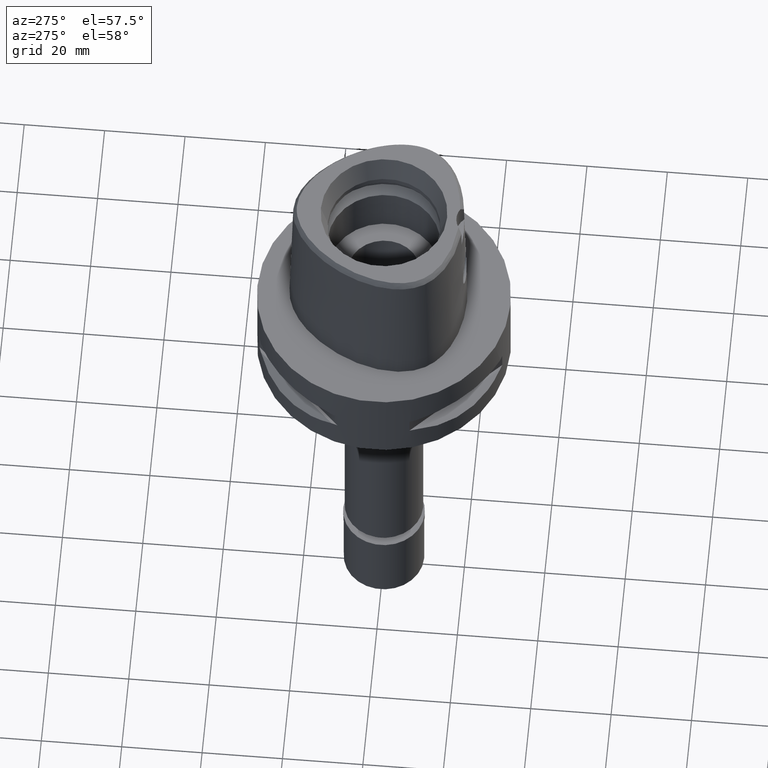
[diagram: clean part render]
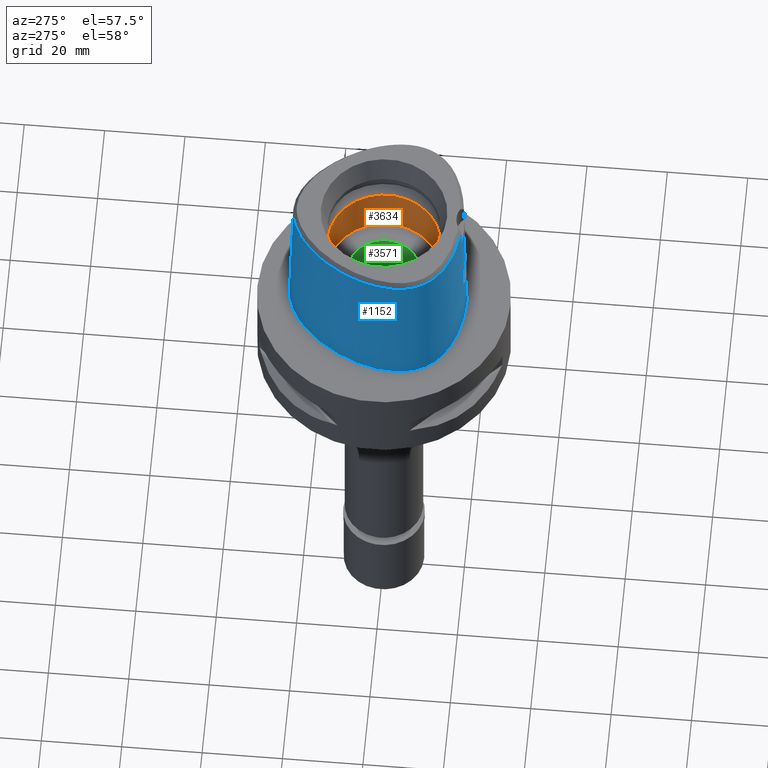
[diagram: same view with three faces highlighted in distinct colors, each labeled with its STEP entity id]
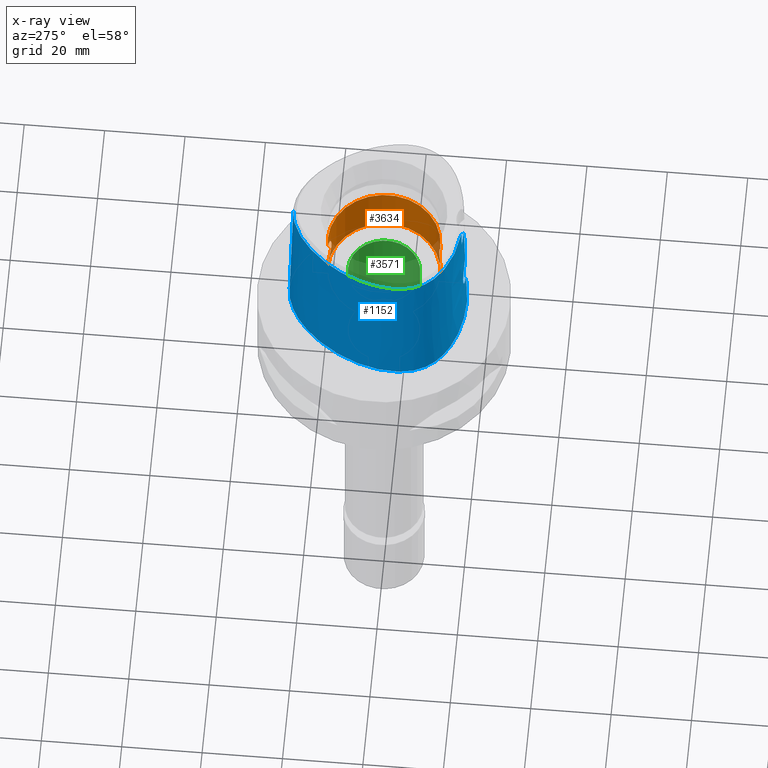
[diagram: x-ray of the same camera — body ghosted, the three highlighted faces saturated]
A machine part, auxiliary view with three faces highlighted in distinct colors.
The next image is the same camera in x-ray (body ghosted, the three faces saturated) — at least one of them is partly hidden behind the body in this view.
Their STEP definitions:

[orange] entity #3634 — the highlighted cylindrical surface (partial cylindrical patch) has radius 14 mm, axis along (0, 0, -1).
#1 = CARTESIAN_POINT ( 'NONE',  ( 3.723011875655001912, -13.49602288719737331, 17.09439534805141747 ) ) ;
#28 = CARTESIAN_POINT ( 'NONE',  ( 3.770305607764555589, -13.48287202864340983, 14.02087226159932598 ) ) ;
#50 = VERTEX_POINT ( 'NONE', #3054 ) ;
#56 = CARTESIAN_POINT ( 'NONE',  ( 3.098515381818673919, -13.65306636118727823, 12.89080379846869207 ) ) ;
#200 = CARTESIAN_POINT ( 'NONE',  ( 3.681888265789251768, 13.50730898608306596, 13.81262890101244345 ) ) ;
#205 = VECTOR ( 'NONE', #2497, 1000.000000000000000 ) ;
#223 = CARTESIAN_POINT ( 'NONE',  ( 4.050104837865987406, 13.40137507185002264, 15.25494482419060205 ) ) ;
#229 = CARTESIAN_POINT ( 'NONE',  ( 1.307177758791879585, -13.93893633211208183, 19.33430355924328481 ) ) ;
#240 = VECTOR ( 'NONE', #2033, 1000.000000000000000 ) ;
#251 = CARTESIAN_POINT ( 'NONE',  ( 2.230267356648572896, 13.82120012601264136, 12.11940589182371220 ) ) ;
#274 = CARTESIAN_POINT ( 'NONE',  ( 1.467188112033413816, 13.92282148873381864, 11.72506250693289864 ) ) ;
#278 = CARTESIAN_POINT ( 'NONE',  ( 0.0000000000000000000, 14.00000000000000000, 19.55000000000000071 ) ) ;
#297 = CARTESIAN_POINT ( 'NONE',  ( 3.922078288965881399, 13.43983163058567598, 16.51882742556871264 ) ) ;
#302 = CARTESIAN_POINT ( 'NONE',  ( 2.312907190560118842, -13.80784060210500996, 18.82598581446445962 ) ) ;
#325 = CARTESIAN_POINT ( 'NONE',  ( 3.020660456626143464, 13.67036005578519386, 18.19808468408423963 ) ) ;
#332 = CARTESIAN_POINT ( 'NONE',  ( 2.632435958575416013, -13.75053331389626265, 12.41927859782405363 ) ) ;
#360 = CARTESIAN_POINT ( 'NONE',  ( 2.268773195310919366, -13.81494468099972117, 12.14511832105054800 ) ) ;
#379 = CARTESIAN_POINT ( 'NONE',  ( 1.571457089741343793, 13.91140721977019368, 19.23272879698699001 ) ) ;
#385 = CARTESIAN_POINT ( 'NONE',  ( 3.760698389514587792, -13.48554827043444426, 13.99676262888372236 ) ) ;
#414 = CARTESIAN_POINT ( 'NONE',  ( 3.927475894212223206, -13.43840014691972407, 16.52342187617643177 ) ) ;
#439 = CARTESIAN_POINT ( 'NONE',  ( 3.557104272889377139, -13.54067981904123386, 13.56250217898807264 ) ) ;
#446 = CIRCLE ( 'NONE', #1099, 14.00000000000000000 ) ;
#465 = CARTESIAN_POINT ( 'NONE',  ( 2.256430671655175413, -13.81696743696902985, 12.13681261214186691 ) ) ;
#490 = CARTESIAN_POINT ( 'NONE',  ( 2.130881178393551956, -13.83743566613691911, 12.05283858998891766 ) ) ;
#541 = CARTESIAN_POINT ( 'NONE',  ( 1.832691376705390729, -13.87954557477251960, 11.88776574652740337 ) ) ;
#564 = CARTESIAN_POINT ( 'NONE',  ( 1.029195579404322602, -13.97152789805618234, 11.54372935798681610 ) ) ;
#568 = DIRECTION ( 'NONE',  ( 0.0000000000000000000, -1.000000000000000000, 0.0000000000000000000 ) ) ;
#590 = CARTESIAN_POINT ( 'NONE',  ( 2.083402352693820347, 13.84411649686240153, 12.02679904731587435 ) ) ;
#594 = LINE ( 'NONE', #4445, #205 ) ;
#615 = CARTESIAN_POINT ( 'NONE',  ( 2.217806395109848783, 13.82320634840191609, 12.11121632281193605 ) ) ;
#623 = CARTESIAN_POINT ( 'NONE',  ( 1.210730804381419556, -13.94747211364479611, 19.36537636553163111 ) ) ;
#638 = CARTESIAN_POINT ( 'NONE',  ( 3.612092317030220379, 13.52616139818937846, 13.66702611687112956 ) ) ;
#645 = CARTESIAN_POINT ( 'NONE',  ( 1.935032715177684270, -13.86568800702036341, 19.05844582710529167 ) ) ;
#662 = CARTESIAN_POINT ( 'NONE',  ( 0.0000000000000000000, 14.00000000000000000, 24.19999999999999929 ) ) ;
#663 = CARTESIAN_POINT ( 'NONE',  ( 3.361880068163155766, 13.59032751575134057, 13.24162249144547943 ) ) ;
#687 = CARTESIAN_POINT ( 'NONE',  ( 4.049894426081060317, 13.40142315477328694, 15.74850829864217161 ) ) ;
#693 = CARTESIAN_POINT ( 'NONE',  ( 2.128132661579412055, -13.83734705125809406, 18.94611731528453902 ) ) ;
#728 = EDGE_CURVE ( 'NONE', #4289, #1656, #4224, .T. ) ;
#739 = CARTESIAN_POINT ( 'NONE',  ( 1.600065394692234744, 13.90814645047113807, 19.22055538723221702 ) ) ;
#746 = CARTESIAN_POINT ( 'NONE',  ( 2.356179768775664485, -13.80026442329979197, 12.20580376827560620 ) ) ;
#766 = CARTESIAN_POINT ( 'NONE',  ( 2.130873031675732943, 13.83743700475326222, 18.94716637659228908 ) ) ;
#773 = CARTESIAN_POINT ( 'NONE',  ( 3.144649004186137020, -13.64249969686727404, 12.94694166644987199 ) ) ;
#795 = CARTESIAN_POINT ( 'NONE',  ( 2.903809840836996337, 13.69558042595941671, 18.32352754237540182 ) ) ;
#802 = CARTESIAN_POINT ( 'NONE',  ( 3.850575600140098587, -13.46063562733913699, 16.78609245254255100 ) ) ;
#829 = CARTESIAN_POINT ( 'NONE',  ( 3.344238891804638847, -13.59469201712707331, 17.78446291344292973 ) ) ;
#834 = DIRECTION ( 'NONE',  ( 0.0000000000000000000, 0.0000000000000000000, -1.000000000000000000 ) ) ;
#852 = CARTESIAN_POINT ( 'NONE',  ( 3.377736576018349091, -13.58640317541351017, 13.26540774977925174 ) ) ;
#880 = CARTESIAN_POINT ( 'NONE',  ( 2.010509632162103877, -13.85534039797709305, 11.98171533900003638 ) ) ;
#913 = EDGE_CURVE ( 'NONE', #2679, #1514, #3491, .T. ) ;
#929 = CARTESIAN_POINT ( 'NONE',  ( 1.686553841207264925, -13.89794860812547839, 11.81773595106222707 ) ) ;
#978 = CARTESIAN_POINT ( 'NONE',  ( 2.255326728028075323, -13.81714821576341201, 12.13607046265122591 ) ) ;
#1008 = CARTESIAN_POINT ( 'NONE',  ( 3.702127444390315159, 13.50182339615068727, 17.14656876326777279 ) ) ;
#1034 = CARTESIAN_POINT ( 'NONE',  ( 2.837973772893474411, 13.70934612522084173, 12.61054438063453098 ) ) ;
#1039 = CARTESIAN_POINT ( 'NONE',  ( 2.794219043407630387, -13.71831254961071700, 18.43176999263129190 ) ) ;
#1053 = CARTESIAN_POINT ( 'NONE',  ( 2.564495781835727684, 13.76306347781942740, 12.36466282433596042 ) ) ;
#1077 = CARTESIAN_POINT ( 'NONE',  ( 3.518019159262221862, 13.55099469856486749, 13.48901570195362432 ) ) ;
#1083 = CARTESIAN_POINT ( 'NONE',  ( 1.419263858834345582, -13.92782887280989179, 19.29344666031714439 ) ) ;
#1099 = AXIS2_PLACEMENT_3D ( 'NONE', #1572, #2014, #3149 ) ;
#1108 = CARTESIAN_POINT ( 'NONE',  ( 2.206604282617290469, -13.82500263684288200, 18.89610616580604230 ) ) ;
#1126 = CARTESIAN_POINT ( 'NONE',  ( 0.0000000000000000000, 14.00000000000000000, 19.55000000000000071 ) ) ;
#1133 = CARTESIAN_POINT ( 'NONE',  ( 3.740374405824665960, -13.49121797331927475, 17.05311813183928393 ) ) ;
#1149 = ORIENTED_EDGE ( 'NONE', *, *, #728, .F. ) ;
#1162 = CARTESIAN_POINT ( 'NONE',  ( 3.329855789806605681, -13.59830196919637224, 13.19313464217331955 ) ) ;
#1181 = ORIENTED_EDGE ( 'NONE', *, *, #913, .F. ) ;
#1188 = CARTESIAN_POINT ( 'NONE',  ( 3.731972597717101880, -13.49354487606111341, 17.07319389049521519 ) ) ;
#1207 = CARTESIAN_POINT ( 'NONE',  ( 2.322867095772036539, 13.80594945643857230, 18.81782271191790201 ) ) ;
#1212 = CARTESIAN_POINT ( 'NONE',  ( 3.359058616892930615, -13.59102609449746524, 17.76257193801513523 ) ) ;
#1231 = VERTEX_POINT ( 'NONE', #2314 ) ;
#1236 = CARTESIAN_POINT ( 'NONE',  ( 2.749429150134252708, -13.72794355113509290, 12.52109900936517839 ) ) ;
#1237 = EDGE_CURVE ( 'NONE', #50, #1656, #1516, .T. ) ;
#1260 = CARTESIAN_POINT ( 'NONE',  ( 1.571471244916244236, -13.91140584751420128, 11.76727716385215139 ) ) ;
#1262 = VECTOR ( 'NONE', #2647, 1000.000000000000000 ) ;
#1380 = CARTESIAN_POINT ( 'NONE',  ( 4.027172463322592044, 13.40874935841158333, 16.00310739076642363 ) ) ;
#1406 = CARTESIAN_POINT ( 'NONE',  ( 1.499100513058812201, 13.91942902670013638, 11.73762153891946447 ) ) ;
#1431 = CARTESIAN_POINT ( 'NONE',  ( 3.354680329558042740, 13.59210945296616124, 13.23093247310055709 ) ) ;
#1453 = CARTESIAN_POINT ( 'NONE',  ( 1.307187133397777368, 13.93893568339380096, 11.66569962606505406 ) ) ;
#1460 = CARTESIAN_POINT ( 'NONE',  ( 1.758914213640482505, -13.88947879502025096, 19.15051695545405863 ) ) ;
#1481 = CARTESIAN_POINT ( 'NONE',  ( 3.359020109898814610, 13.59103542221254735, 13.23737089536243872 ) ) ;
#1490 = CARTESIAN_POINT ( 'NONE',  ( 2.749433055991873154, -13.72738395002673784, 18.47422555719835913 ) ) ;
#1513 = CARTESIAN_POINT ( 'NONE',  ( 3.386236333437208756, -13.58428775399706723, 13.27830608079963248 ) ) ;
#1514 = VERTEX_POINT ( 'NONE', #2520 ) ;
#1516 = LINE ( 'NONE', #3889, #240 ) ;
#1535 = CARTESIAN_POINT ( 'NONE',  ( 3.922079205923322043, -13.43983130148218663, 14.48117699414089365 ) ) ;
#1557 = CARTESIAN_POINT ( 'NONE',  ( 1.559041427489886278, 13.91280564626705818, 19.23793945981500997 ) ) ;
#1566 = CARTESIAN_POINT ( 'NONE',  ( 3.217051634034765240, -13.62560167975882841, 17.96121095395449885 ) ) ;
#1572 = CARTESIAN_POINT ( 'NONE',  ( 0.0000000000000000000, 0.0000000000000000000, 11.00000000000000000 ) ) ;
#1583 = CARTESIAN_POINT ( 'NONE',  ( 1.832682128947450639, 13.87954668815114267, 19.11223895308327414 ) ) ;
#1589 = CARTESIAN_POINT ( 'NONE',  ( 2.987578035334788051, -13.67819521538854310, 18.24080360144242974 ) ) ;
#1598 = EDGE_CURVE ( 'NONE', #2235, #4591, #3522, .T. ) ;
#1610 = CARTESIAN_POINT ( 'NONE',  ( 3.518056051314457644, -13.55098508632043242, 17.51091968151423828 ) ) ;
#1638 = CARTESIAN_POINT ( 'NONE',  ( 1.559056483624804201, -13.91280418779705386, 11.76206681924216824 ) ) ;
#1656 = VERTEX_POINT ( 'NONE', #2549 ) ;
#1735 = DIRECTION ( 'NONE',  ( 0.0000000000000000000, 0.0000000000000000000, 1.000000000000000000 ) ) ;
#1737 = CARTESIAN_POINT ( 'NONE',  ( 0.2481266265099588697, 14.00000000000000000, 11.44999999999999929 ) ) ;
#1765 = CARTESIAN_POINT ( 'NONE',  ( 3.722985834075813294, 13.49603060517026876, 13.90554383511542191 ) ) ;
#1773 = EDGE_CURVE ( 'NONE', #1514, #4591, #3782, .T. ) ;
#1789 = CARTESIAN_POINT ( 'NONE',  ( 2.180412222332861027, 13.82916808513869356, 12.08695799697060025 ) ) ;
#1799 = CARTESIAN_POINT ( 'NONE',  ( 2.083417932633863767, -13.84411419573542545, 18.97319161945814514 ) ) ;
#1816 = CARTESIAN_POINT ( 'NONE',  ( 2.794188265665984883, 13.71831884113747613, 12.56820068599706985 ) ) ;
#1821 = CARTESIAN_POINT ( 'NONE',  ( 2.230287417959103902, -13.82119696819859556, 18.88058087293870813 ) ) ;
#1841 = CARTESIAN_POINT ( 'NONE',  ( 1.758911448488973184, 13.88947925419896201, 11.84948192320104532 ) ) ;
#1870 = CARTESIAN_POINT ( 'NONE',  ( 3.864694685434272969, 13.45627952657940796, 16.71292491331624319 ) ) ;
#1877 = CARTESIAN_POINT ( 'NONE',  ( 2.407040127011072617, -13.79178862310002351, 18.75984205963901275 ) ) ;
#1895 = CARTESIAN_POINT ( 'NONE',  ( 0.4996109250117751199, 13.99999999999999822, 19.54999999999999005 ) ) ;
#1903 = CARTESIAN_POINT ( 'NONE',  ( 2.425356293566213406, -13.78827839650478992, 12.25602180758893489 ) ) ;
#1922 = CARTESIAN_POINT ( 'NONE',  ( 3.386213530919897519, 13.58429339872629527, 17.72172867399999774 ) ) ;
#1930 = CARTESIAN_POINT ( 'NONE',  ( 3.833378784112526194, -13.46518651549399692, 14.19006897785435939 ) ) ;
#1954 = CARTESIAN_POINT ( 'NONE',  ( 2.838009928938158843, -13.70933862722830732, 18.38942009770882535 ) ) ;
#1976 = CARTESIAN_POINT ( 'NONE',  ( 3.329833399432507335, 13.59830740143285155, 17.80689756936500245 ) ) ;
#1983 = CARTESIAN_POINT ( 'NONE',  ( 3.649300473894191654, -13.51628050934238168, 13.73856294186508187 ) ) ;
#2007 = CARTESIAN_POINT ( 'NONE',  ( 3.381275431626924455, -13.58552310375170791, 13.27076317274760875 ) ) ;
#2014 = DIRECTION ( 'NONE',  ( 0.0000000000000000000, 0.0000000000000000000, -1.000000000000000000 ) ) ;
#2033 = DIRECTION ( 'NONE',  ( 0.0000000000000000000, 0.0000000000000000000, 1.000000000000000000 ) ) ;
#2058 = CARTESIAN_POINT ( 'NONE',  ( 0.4996170307577484926, -14.00000000000000355, 11.45000000000000107 ) ) ;
#2060 = DIRECTION ( 'NONE',  ( 0.0000000000000000000, 0.0000000000000000000, 1.000000000000000000 ) ) ;
#2157 = CARTESIAN_POINT ( 'NONE',  ( 3.092390698714773567, 13.65467114209335264, 12.88130927472243847 ) ) ;
#2184 = CARTESIAN_POINT ( 'NONE',  ( 3.927462924626538232, 13.43840419036665779, 14.47652859066138653 ) ) ;
#2189 = CARTESIAN_POINT ( 'NONE',  ( 1.499090398659422396, -13.91942988264788639, 19.26238249073400155 ) ) ;
#2208 = CARTESIAN_POINT ( 'NONE',  ( 2.312892876173468171, 13.80784294826023206, 12.17400404921139589 ) ) ;
#2233 = CARTESIAN_POINT ( 'NONE',  ( 3.300115213668325165, 13.60554254247755246, 13.15213791935524590 ) ) ;
#2235 = VERTEX_POINT ( 'NONE', #3657 ) ;
#2239 = CARTESIAN_POINT ( 'NONE',  ( 0.5031329879872217248, -13.99299628181930721, 19.52713608390235223 ) ) ;
#2245 = EDGE_CURVE ( 'NONE', #1231, #2679, #4389, .T. ) ;
#2257 = CARTESIAN_POINT ( 'NONE',  ( 3.953315574815617683, 13.43069190713402961, 16.38937041772095071 ) ) ;
#2263 = CARTESIAN_POINT ( 'NONE',  ( 1.017639181859962605, -13.96323047955135976, 19.42236212085241220 ) ) ;
#2278 = CARTESIAN_POINT ( 'NONE',  ( 2.632421440604336027, 13.75053619292203422, 18.58073368517403168 ) ) ;
#2312 = CARTESIAN_POINT ( 'NONE',  ( 3.020680690158251025, -13.67035562332215903, 12.80193796115283078 ) ) ;
#2314 = CARTESIAN_POINT ( 'NONE',  ( 0.0000000000000000000, 14.00000000000000000, 11.00000000000000000 ) ) ;
#2331 = CARTESIAN_POINT ( 'NONE',  ( 2.356169659980356990, 13.80026630004203447, 18.79420345841271711 ) ) ;
#2339 = CARTESIAN_POINT ( 'NONE',  ( 2.935464796373802532, -13.68884427350274180, 12.70941809086976626 ) ) ;
#2366 = CARTESIAN_POINT ( 'NONE',  ( 4.050109039351834639, -13.40137442886772412, 15.74496307468995937 ) ) ;
#2395 = CARTESIAN_POINT ( 'NONE',  ( 3.641267411105146845, -13.51833533353413053, 17.27419309999019603 ) ) ;
#2420 = CARTESIAN_POINT ( 'NONE',  ( 3.446478207058913057, -13.56938250738010154, 17.63210248802777613 ) ) ;
#2429 = AXIS2_PLACEMENT_3D ( 'NONE', #2765, #834, #3612 ) ;
#2497 = DIRECTION ( 'NONE',  ( 0.0000000000000000000, 0.0000000000000000000, 1.000000000000000000 ) ) ;
#2520 = CARTESIAN_POINT ( 'NONE',  ( 0.0000000000000000000, 14.00000000000000000, 19.55000000000000071 ) ) ;
#2544 = CARTESIAN_POINT ( 'NONE',  ( 3.833372613769522541, 13.46518805228033244, 16.80994934954906128 ) ) ;
#2549 = CARTESIAN_POINT ( 'NONE',  ( 0.0000000000000000000, -14.00000000000000000, 11.44999999999999929 ) ) ;
#2570 = CARTESIAN_POINT ( 'NONE',  ( 3.649287754606132417, 13.51628378879347814, 17.26146357314931024 ) ) ;
#2598 = CARTESIAN_POINT ( 'NONE',  ( 3.362135645915919735, 13.59026426608101623, 13.24199978628648466 ) ) ;
#2619 = CARTESIAN_POINT ( 'NONE',  ( 2.749405349986303371, 13.72738952680676761, 12.52574890524282303 ) ) ;
#2621 = ORIENTED_EDGE ( 'NONE', *, *, #3969, .T. ) ;
#2644 = CARTESIAN_POINT ( 'NONE',  ( 3.737862436382984210, 13.49191471466118131, 13.94085186772397122 ) ) ;
#2647 = DIRECTION ( 'NONE',  ( 0.0000000000000000000, 0.0000000000000000000, 1.000000000000000000 ) ) ;
#2650 = CARTESIAN_POINT ( 'NONE',  ( 1.516899316931221264, -13.91750090884374913, 19.25522928305834824 ) ) ;
#2670 = CARTESIAN_POINT ( 'NONE',  ( 3.557088666341913452, 13.54068383479801696, 17.43752651043655888 ) ) ;
#2679 = VERTEX_POINT ( 'NONE', #4159 ) ;
#2693 = CARTESIAN_POINT ( 'NONE',  ( 3.471388650637377449, 13.56282351116202278, 17.58642340598301246 ) ) ;
#2702 = CARTESIAN_POINT ( 'NONE',  ( 3.410743495965109506, -13.57816568318650319, 13.31599196299310606 ) ) ;
#2722 = CARTESIAN_POINT ( 'NONE',  ( 3.267839164474154234, 13.61368337661979133, 17.89612675440678657 ) ) ;
#2729 = CARTESIAN_POINT ( 'NONE',  ( 3.471407568577030922, -13.56281871369563952, 13.41360808466912857 ) ) ;
#2753 = CARTESIAN_POINT ( 'NONE',  ( 3.410721871959659257, 13.57817107781601074, 17.68404181484999071 ) ) ;
#2760 = CARTESIAN_POINT ( 'NONE',  ( 4.027223470522174331, -13.40876944168840268, 16.00391502729123516 ) ) ;
#2765 = CARTESIAN_POINT ( 'NONE',  ( 0.0000000000000000000, 0.0000000000000000000, 39.89999999999999858 ) ) ;
#2781 = CARTESIAN_POINT ( 'NONE',  ( 3.361919059606737203, -13.59031805818605676, 17.75831946435156894 ) ) ;
#2809 = CARTESIAN_POINT ( 'NONE',  ( 3.321853759881778778, -13.60021613421537623, 17.81705094770119757 ) ) ;
#2837 = CARTESIAN_POINT ( 'NONE',  ( 1.773869829254197228, -13.88717198021018717, 11.85856959830013402 ) ) ;
#2937 = CARTESIAN_POINT ( 'NONE',  ( 0.8886602406458201653, 13.97198482965736588, 11.54653314444766821 ) ) ;
#2962 = CARTESIAN_POINT ( 'NONE',  ( 3.760688074393179203, 13.48555087701916833, 17.00326317844757540 ) ) ;
#2984 = CARTESIAN_POINT ( 'NONE',  ( 3.321820541935854187, 13.60022405027051562, 13.18290148898179837 ) ) ;
#2990 = CARTESIAN_POINT ( 'NONE',  ( 0.2481241771905377536, -14.00000000000000355, 19.54999999999999361 ) ) ;
#3007 = CARTESIAN_POINT ( 'NONE',  ( 2.705631081828257845, 13.73602433004955259, 12.48611241062261534 ) ) ;
#3028 = CARTESIAN_POINT ( 'NONE',  ( 1.643405570493256196, 13.90359095056343719, 11.79642487328022149 ) ) ;
#3054 = CARTESIAN_POINT ( 'NONE',  ( 0.0000000000000000000, -14.00000000000000000, 11.00000000000000000 ) ) ;
#3058 = CARTESIAN_POINT ( 'NONE',  ( 3.740349717813418629, 13.49122537259350985, 13.94682241177603288 ) ) ;
#3087 = CARTESIAN_POINT ( 'NONE',  ( 3.444114222038757500, 13.56977022798827548, 17.63138026178977569 ) ) ;
#3094 = CARTESIAN_POINT ( 'NONE',  ( 3.362175151431368469, -13.59025468045884821, 17.75794138952503687 ) ) ;
#3112 = ORIENTED_EDGE ( 'NONE', *, *, #1598, .T. ) ;
#3118 = CARTESIAN_POINT ( 'NONE',  ( 3.750535583143311147, -13.48837563529405159, 13.97158931176705465 ) ) ;
#3144 = CARTESIAN_POINT ( 'NONE',  ( 3.701476196187174939, -13.50195603623057394, 17.14416223943777595 ) ) ;
#3149 = DIRECTION ( 'NONE',  ( 0.0000000000000000000, 1.000000000000000000, 0.0000000000000000000 ) ) ;
#3162 = CARTESIAN_POINT ( 'NONE',  ( 3.377713256182831802, 13.58640893255668480, 17.73462749921339565 ) ) ;
#3164 = EDGE_CURVE ( 'NONE', #1231, #50, #446, .T. ) ;
#3168 = CARTESIAN_POINT ( 'NONE',  ( 3.253150413689685827, -13.61695205283448651, 17.91296083946634354 ) ) ;
#3185 = CARTESIAN_POINT ( 'NONE',  ( 3.524199374407259722, 13.54926875963957933, 17.49682897130887227 ) ) ;
#3190 = CARTESIAN_POINT ( 'NONE',  ( 2.993295808963989391, -13.67635858830958995, 12.77154234734100235 ) ) ;
#3195 = CYLINDRICAL_SURFACE ( 'NONE', #2429, 14.00000000000000000 ) ;
#3217 = CARTESIAN_POINT ( 'NONE',  ( 1.600078814874695610, -13.90814512832970529, 11.77945038585863990 ) ) ;
#3319 = CARTESIAN_POINT ( 'NONE',  ( 0.5031375785651610588, 13.99299620741434325, 11.47286437004442305 ) ) ;
#3321 = ORIENTED_EDGE ( 'NONE', *, *, #1773, .F. ) ;
#3343 = CARTESIAN_POINT ( 'NONE',  ( 2.619673022922138994, 13.75271275996641940, 12.41039726462985016 ) ) ;
#3372 = CARTESIAN_POINT ( 'NONE',  ( 3.850558670354384372, 13.46064117905768498, 14.21385490519483774 ) ) ;
#3394 = CARTESIAN_POINT ( 'NONE',  ( 2.407026743236367672, 13.79179092510370097, 12.24014823374410454 ) ) ;
#3416 = CARTESIAN_POINT ( 'NONE',  ( 1.935022422099377248, 13.86568947271855201, 11.94154862979159937 ) ) ;
#3441 = CARTESIAN_POINT ( 'NONE',  ( 3.792115437646679243, 13.47677934324684657, 16.92282825343409058 ) ) ;
#3450 = CARTESIAN_POINT ( 'NONE',  ( 2.217825895404998970, -13.82320329824214689, 18.88877091521868579 ) ) ;
#3469 = CARTESIAN_POINT ( 'NONE',  ( 1.643112089889030569, 13.90317243032712291, 19.20194634168781533 ) ) ;
#3475 = CARTESIAN_POINT ( 'NONE',  ( 3.953314660131233893, -13.43069195178868647, 14.61062672898304804 ) ) ;
#3491 = B_SPLINE_CURVE_WITH_KNOTS ( 'NONE', 3,
 ( #4091, #1737, #3319, #2937, #4488, #3804, #1453, #3780, #274, #1406, #5000, #3028, #1841, #3416, #4975, #590, #4115, #1789, #3827, #615, #4563, #251, #2208, #3394, #1053, #3343, #3007, #2619, #1816, #4187, #1034, #4590, #2157, #3755, #4948, #2233, #2984, #4926, #1431, #1481, #663, #2598, #4162, #1077, #638, #4540, #200, #4900, #1765, #3731, #2644, #3058, #3372, #2184, #4211, #223, #687, #1380, #2257, #297, #1870, #2544, #3441, #4617, #2962, #4516, #4139, #1008, #2570, #2670, #3185, #2693, #3087, #2753, #5025, #1922, #3958, #3162, #1976, #2722, #4642, #4259, #325, #3496, #4314, #795, #5054, #2278, #3521, #4235, #2331, #1207, #4667, #5079, #3881, #3551, #4287, #766, #4693, #1583, #3907, #3851, #3469, #739, #379, #1557, #4724, #1895, #1126 ),
 .UNSPECIFIED., .F., .F.,
 ( 4, 2, 2, 1, 1, 2, 2, 2, 2, 1, 1, 1, 2, 2, 2, 2, 1, 2, 2, 2, 2, 1, 1, 1, 2, 2, 2, 2, 1, 1, 2, 2, 2, 2, 2, 2, 1, 1, 1, 2, 2, 2, 2, 1, 1, 1, 2, 2, 2, 2, 2, 2, 2, 2, 1, 1, 1, 2, 2, 2, 2, 1, 2, 2, 4 ),
 ( 0.0000000000000000000, 0.06250000000002138567, 0.09375000000003208545, 0.1093750000000373868, 0.1171875000000400235, 0.1210937500000413142, 0.1250000000000425771, 0.1562500000000529021, 0.1718750000000581479, 0.1796875000000608402, 0.1835937500000622002, 0.1855468750000628664, 0.1865234375000631162, 0.1875000000000633660, 0.2187500000000720257, 0.2343750000000762446, 0.2421875000000783817, 0.2460937500000794087, 0.2500000000000804357, 0.2812500000000883738, 0.2968750000000922040, 0.3046875000000943134, 0.3085937500000953126, 0.3105468750000957567, 0.3115234375000957012, 0.3125000000000956457, 0.3437500000000897615, 0.3593750000000867639, 0.3671875000000850986, 0.3710937500000843214, 0.3730468750000841549, 0.3750000000000839884, 0.4375000000000763833, 0.5000000000000687228, 0.5625000000000610623, 0.5937500000000568434, 0.6093750000000547340, 0.6171875000000537348, 0.6210937500000535127, 0.6230468750000534017, 0.6250000000000532907, 0.6562500000000528466, 0.6718750000000526246, 0.6796875000000521805, 0.6835937500000519584, 0.6855468750000521805, 0.6865234375000519584, 0.6875000000000517364, 0.7187500000000504041, 0.7343750000000500711, 0.7421875000000499600, 0.7500000000000498490, 0.7812500000000496270, 0.7968750000000497380, 0.8046875000000501821, 0.8085937500000504041, 0.8105468750000504041, 0.8115234375000504041, 0.8125000000000504041, 0.8437500000000428546, 0.8593750000000391909, 0.8671875000000375255, 0.8710937500000365263, 0.8750000000000355271, 1.000000000000000000 ),
 .UNSPECIFIED. ) ;
#3496 = CARTESIAN_POINT ( 'NONE',  ( 2.993275682879698252, 13.67636296169212606, 18.22847972466929889 ) ) ;
#3502 = CARTESIAN_POINT ( 'NONE',  ( 3.267860856862455865, -13.61367823521695719, 13.10390269889959036 ) ) ;
#3521 = CARTESIAN_POINT ( 'NONE',  ( 2.474897425330298883, 13.77946391610721300, 18.70653994269108011 ) ) ;
#3522 = CIRCLE ( 'NONE', #4174, 14.00000000000000000 ) ;
#3530 = CARTESIAN_POINT ( 'NONE',  ( 3.702139074801068741, -13.50182043944851173, 13.85345734734345235 ) ) ;
#3551 = CARTESIAN_POINT ( 'NONE',  ( 2.256421358878216488, 13.81696909001792939, 18.86319363595353593 ) ) ;
#3556 = CARTESIAN_POINT ( 'NONE',  ( 3.524216152915720546, -13.54926445641719113, 13.50320070271054718 ) ) ;
#3583 = CARTESIAN_POINT ( 'NONE',  ( 3.792123985354859173, -13.47677720437687832, 14.07719458703809146 ) ) ;
#3612 = DIRECTION ( 'NONE',  ( 0.0000000000000000000, -1.000000000000000000, 0.0000000000000000000 ) ) ;
#3634 = ADVANCED_FACE ( 'NONE', ( #4757 ), #3195, .F. ) ;
#3657 = CARTESIAN_POINT ( 'NONE',  ( 0.0000000000000000000, -14.00000000000000000, 24.19999999999999929 ) ) ;
#3731 = CARTESIAN_POINT ( 'NONE',  ( 3.731947233726997659, 13.49355243646696678, 13.92674594029439028 ) ) ;
#3755 = CARTESIAN_POINT ( 'NONE',  ( 3.217025596349118555, 13.62560769370299951, 13.03875506105696758 ) ) ;
#3780 = CARTESIAN_POINT ( 'NONE',  ( 1.419273682516925206, 13.92782810608995625, 11.70655701251878789 ) ) ;
#3782 = LINE ( 'NONE', #278, #1262 ) ;
#3785 = CARTESIAN_POINT ( 'NONE',  ( 2.824278146714199078, -13.71216806335593041, 18.40282419416466908 ) ) ;
#3804 = CARTESIAN_POINT ( 'NONE',  ( 1.210739730854810459, 13.94747155560755481, 11.63462642380360457 ) ) ;
#3810 = CARTESIAN_POINT ( 'NONE',  ( 0.8886530555221386907, -13.97198512727722708, 19.45346844016472687 ) ) ;
#3827 = CARTESIAN_POINT ( 'NONE',  ( 2.206585077432667852, 13.82500562469161487, 12.10388135703218460 ) ) ;
#3851 = CARTESIAN_POINT ( 'NONE',  ( 1.686542341523468602, 13.89794981159688980, 19.18226932052732536 ) ) ;
#3881 = CARTESIAN_POINT ( 'NONE',  ( 2.261340657161257095, 13.81616386827182019, 18.85988797640481351 ) ) ;
#3887 = CARTESIAN_POINT ( 'NONE',  ( 2.322876849145397049, -13.80594766824255260, 12.18218411301524640 ) ) ;
#3889 = CARTESIAN_POINT ( 'NONE',  ( 0.0000000000000000000, -14.00000000000000000, 11.00000000000000000 ) ) ;
#3907 = CARTESIAN_POINT ( 'NONE',  ( 1.773859858298503012, 13.88717310935475524, 19.14143527715514992 ) ) ;
#3915 = CARTESIAN_POINT ( 'NONE',  ( 4.049890164045741869, -13.40142381086893941, 15.25144457807852660 ) ) ;
#3938 = CARTESIAN_POINT ( 'NONE',  ( 3.737887346436771896, -13.49190726130823492, 17.05908841075503446 ) ) ;
#3958 = CARTESIAN_POINT ( 'NONE',  ( 3.381252386275208188, 13.58552879951880676, 17.72927178203262955 ) ) ;
#3967 = CARTESIAN_POINT ( 'NONE',  ( 4.027167981713306588, -13.40875010522410271, 14.99686531038408965 ) ) ;
#3969 = EDGE_CURVE ( 'NONE', #4289, #2235, #594, .T. ) ;
#3989 = ORIENTED_EDGE ( 'NONE', *, *, #1237, .T. ) ;
#3996 = CARTESIAN_POINT ( 'NONE',  ( 1.643124464793714656, -13.90317117702281990, 11.79805916110036890 ) ) ;
#4024 = ORIENTED_EDGE ( 'NONE', *, *, #3164, .T. ) ;
#4091 = CARTESIAN_POINT ( 'NONE',  ( 0.0000000000000000000, 14.00000000000000000, 11.44999999999999929 ) ) ;
#4115 = CARTESIAN_POINT ( 'NONE',  ( 2.128115661502098632, 13.83734960245050161, 12.05387220701158668 ) ) ;
#4135 = EDGE_LOOP ( 'NONE', ( #4270, #4024, #3989, #1149, #2621, #3112, #3321, #1181 ) ) ;
#4139 = CARTESIAN_POINT ( 'NONE',  ( 3.750524584725995147, 13.48837842770463169, 17.02843767657987328 ) ) ;
#4146 = CARTESIAN_POINT ( 'NONE',  ( 0.0000000000000000000, -14.00000000000000000, 19.55000000000000071 ) ) ;
#4159 = CARTESIAN_POINT ( 'NONE',  ( 0.0000000000000000000, 14.00000000000000000, 11.44999999999999929 ) ) ;
#4162 = CARTESIAN_POINT ( 'NONE',  ( 3.446439376995800608, 13.56939223702177699, 13.36783492912207905 ) ) ;
#4168 = CARTESIAN_POINT ( 'NONE',  ( 1.643402327050464296, -13.90359116573514342, 19.20357680875469342 ) ) ;
#4174 = AXIS2_PLACEMENT_3D ( 'NONE', #4395, #2060, #568 ) ;
#4187 = CARTESIAN_POINT ( 'NONE',  ( 2.824245245329735532, 13.71217485459649943, 12.59714380724674676 ) ) ;
#4211 = CARTESIAN_POINT ( 'NONE',  ( 4.027216825694031499, 13.40877103518722357, 14.99603235332364903 ) ) ;
#4217 = CARTESIAN_POINT ( 'NONE',  ( 1.994209348714211405, -13.85732070569914143, 19.02567586477819006 ) ) ;
#4224 = B_SPLINE_CURVE_WITH_KNOTS ( 'NONE', 3,
 ( #4146, #2990, #2239, #3810, #2263, #623, #229, #1083, #4981, #2189, #2650, #4168, #1460, #645, #4217, #1799, #693, #4622, #1108, #3450, #4241, #1821, #302, #1877, #4931, #4547, #5006, #1490, #1039, #3785, #1954, #1589, #4343, #1566, #3168, #4294, #2809, #829, #4730, #1212, #2781, #3094, #2420, #1610, #5033, #2395, #4700, #3144, #1, #1188, #3938, #1133, #802, #414, #2760, #2366, #3915, #3967, #3475, #1535, #4320, #1930, #3583, #28, #385, #4675, #3118, #3530, #1983, #439, #3556, #2729, #4650, #2702, #4268, #1513, #2007, #852, #1162, #3502, #773, #56, #2312, #3190, #2339, #4752, #1236, #332, #4365, #1903, #746, #3887, #5060, #360, #4415, #465, #978, #490, #880, #541, #2837, #929, #3996, #3217, #1260, #1638, #564, #2058, #4776 ),
 .UNSPECIFIED., .F., .F.,
 ( 4, 2, 2, 1, 1, 2, 2, 2, 2, 1, 1, 1, 2, 2, 2, 2, 1, 2, 2, 2, 2, 1, 1, 1, 2, 2, 2, 2, 1, 1, 2, 2, 2, 2, 2, 2, 1, 1, 1, 2, 2, 2, 2, 1, 1, 1, 2, 2, 2, 2, 2, 2, 2, 2, 1, 1, 1, 2, 2, 2, 2, 1, 2, 2, 4 ),
 ( 0.0000000000000000000, 0.06250000000000927036, 0.09375000000001382228, 0.1093750000000160705, 0.1171875000000173056, 0.1210937500000179301, 0.1250000000000185407, 0.1562500000000231204, 0.1718750000000253686, 0.1796875000000265343, 0.1835937500000270617, 0.1855468750000273392, 0.1865234375000274503, 0.1875000000000275613, 0.2187500000000220102, 0.2343750000000194844, 0.2421875000000182354, 0.2460937500000173472, 0.2500000000000164313, 0.2812500000000076605, 0.2968750000000029976, 0.3046875000000007216, 0.3085937499999996114, 0.3105468749999990008, 0.3115234374999987788, 0.3124999999999986122, 0.3437499999999862887, 0.3593749999999801270, 0.3671874999999770739, 0.3710937499999751865, 0.3730468749999741873, 0.3749999999999731881, 0.4374999999999590883, 0.4999999999999449329, 0.5624999999999307221, 0.5937499999999237277, 0.6093749999999201750, 0.6171874999999185096, 0.6210937499999176215, 0.6230468749999172884, 0.6249999999999170663, 0.6562499999999140687, 0.6718749999999126254, 0.6796874999999118483, 0.6835937499999114042, 0.6855468749999110711, 0.6865234374999110711, 0.6874999999999110711, 0.7187499999999164002, 0.7343749999999190647, 0.7421874999999206191, 0.7499999999999220623, 0.7812499999999285016, 0.7968749999999316103, 0.8046874999999330536, 0.8085937499999338307, 0.8105468749999343858, 0.8115234374999347189, 0.8124999999999350520, 0.8437499999999454880, 0.8593749999999508171, 0.8671874999999537037, 0.8710937499999550360, 0.8749999999999563682, 1.000000000000000000 ),
 .UNSPECIFIED. ) ;
#4235 = CARTESIAN_POINT ( 'NONE',  ( 2.425345327374605287, 13.78828047748906549, 18.74398637652861765 ) ) ;
#4241 = CARTESIAN_POINT ( 'NONE',  ( 2.225307842471148767, -13.82200032481050300, 18.88386244170732198 ) ) ;
#4259 = CARTESIAN_POINT ( 'NONE',  ( 3.098494805694566256, 13.65307097543445813, 18.10922060507405362 ) ) ;
#4268 = CARTESIAN_POINT ( 'NONE',  ( 3.393648836074186104, -13.58244002078084911, 13.28961777949049328 ) ) ;
#4270 = ORIENTED_EDGE ( 'NONE', *, *, #2245, .F. ) ;
#4287 = CARTESIAN_POINT ( 'NONE',  ( 2.255317399664305000, 13.81714987027313235, 18.86393579140712973 ) ) ;
#4289 = VERTEX_POINT ( 'NONE', #5004 ) ;
#4294 = CARTESIAN_POINT ( 'NONE',  ( 3.300146341774500947, -13.60553517928263823, 17.84781835532356453 ) ) ;
#4314 = CARTESIAN_POINT ( 'NONE',  ( 2.935444872375262637, 13.68884853175270422, 18.29060286011752723 ) ) ;
#4320 = CARTESIAN_POINT ( 'NONE',  ( 3.864698997085207033, -13.45627842728040591, 14.28708901166261747 ) ) ;
#4343 = CARTESIAN_POINT ( 'NONE',  ( 3.092415008777622987, -13.65466569420119747, 18.11866219988991489 ) ) ;
#4365 = CARTESIAN_POINT ( 'NONE',  ( 2.474909159318730900, -13.77946166276214512, 12.29346908457493903 ) ) ;
#4389 = LINE ( 'NONE', #4463, #4867 ) ;
#4395 = CARTESIAN_POINT ( 'NONE',  ( 0.0000000000000000000, 0.0000000000000000000, 24.19999999999999929 ) ) ;
#4415 = CARTESIAN_POINT ( 'NONE',  ( 2.261349992724984048, -13.81616220668699135, 12.14011830680945359 ) ) ;
#4445 = CARTESIAN_POINT ( 'NONE',  ( 0.0000000000000000000, -14.00000000000000000, 19.55000000000000071 ) ) ;
#4463 = CARTESIAN_POINT ( 'NONE',  ( 0.0000000000000000000, 14.00000000000000000, 11.00000000000000000 ) ) ;
#4488 = CARTESIAN_POINT ( 'NONE',  ( 1.017647129622376134, 13.96323008892529138, 11.57763991488771715 ) ) ;
#4516 = CARTESIAN_POINT ( 'NONE',  ( 3.754225769600867846, 13.48734939608367966, 17.01933006533278814 ) ) ;
#4540 = CARTESIAN_POINT ( 'NONE',  ( 3.641236061999908014, 13.51834413261587109, 13.72574250724094469 ) ) ;
#4547 = CARTESIAN_POINT ( 'NONE',  ( 2.619693227317868800, -13.75270887471485537, 18.58958572231111717 ) ) ;
#4563 = CARTESIAN_POINT ( 'NONE',  ( 2.225288147325894528, 13.82200341650443498, 12.11612460655873313 ) ) ;
#4590 = CARTESIAN_POINT ( 'NONE',  ( 2.987551070598235103, 13.67820116345343351, 12.75916637442935020 ) ) ;
#4591 = VERTEX_POINT ( 'NONE', #662 ) ;
#4617 = CARTESIAN_POINT ( 'NONE',  ( 3.770295828577627351, 13.48287449147565376, 16.97915267913733572 ) ) ;
#4622 = CARTESIAN_POINT ( 'NONE',  ( 2.180430719051042576, -13.82916524275079695, 18.91303019140541508 ) ) ;
#4642 = CARTESIAN_POINT ( 'NONE',  ( 3.144628172867338201, 13.64250443836072435, 18.05308396090352474 ) ) ;
#4650 = CARTESIAN_POINT ( 'NONE',  ( 3.444134305082938941, -13.56976516763849183, 13.36865222194239422 ) ) ;
#4667 = CARTESIAN_POINT ( 'NONE',  ( 2.286392394009954199, 13.81203773452794792, 18.84292893667480584 ) ) ;
#4675 = CARTESIAN_POINT ( 'NONE',  ( 3.754236443711725268, -13.48734669257251717, 13.98069631227824061 ) ) ;
#4693 = CARTESIAN_POINT ( 'NONE',  ( 2.010501717821064460, 13.85534156541368667, 19.01828921528356986 ) ) ;
#4700 = CARTESIAN_POINT ( 'NONE',  ( 3.681917144146650500, -13.50730066062807033, 17.18730806981009707 ) ) ;
#4724 = CARTESIAN_POINT ( 'NONE',  ( 1.029184106487188499, 13.97152837429127814, 19.45627297032396186 ) ) ;
#4730 = CARTESIAN_POINT ( 'NONE',  ( 3.354718119037594981, -13.59210031745545955, 17.76901166034746993 ) ) ;
#4752 = CARTESIAN_POINT ( 'NONE',  ( 2.903830259211071407, -13.69557610162038586, 12.67649343706872145 ) ) ;
#4757 = FACE_OUTER_BOUND ( 'NONE', #4135, .T. ) ;
#4776 = CARTESIAN_POINT ( 'NONE',  ( 0.0000000000000000000, -14.00000000000000000, 11.44999999999999929 ) ) ;
#4867 = VECTOR ( 'NONE', #1735, 1000.000000000000000 ) ;
#4900 = CARTESIAN_POINT ( 'NONE',  ( 3.701448599127524108, 13.50196410077353448, 13.85577559946501047 ) ) ;
#4926 = CARTESIAN_POINT ( 'NONE',  ( 3.344202712280511136, 13.59470072215733438, 13.21548413948281997 ) ) ;
#4931 = CARTESIAN_POINT ( 'NONE',  ( 2.564513564538566381, -13.76306012767575027, 18.63532267621785721 ) ) ;
#4948 = CARTESIAN_POINT ( 'NONE',  ( 3.253122838619350254, 13.61695847484784849, 13.08700209496323019 ) ) ;
#4975 = CARTESIAN_POINT ( 'NONE',  ( 1.994196793350470953, 13.85732250606946003, 11.97431708272922002 ) ) ;
#4981 = CARTESIAN_POINT ( 'NONE',  ( 1.467178111794469331, -13.92282230864166337, 19.27494137943967090 ) ) ;
#5000 = CARTESIAN_POINT ( 'NONE',  ( 1.516910412645901429, 13.91749993127318064, 11.74477520274085229 ) ) ;
#5004 = CARTESIAN_POINT ( 'NONE',  ( 0.0000000000000000000, -14.00000000000000000, 19.55000000000000071 ) ) ;
#5006 = CARTESIAN_POINT ( 'NONE',  ( 2.705656092557879422, -13.73601936354431174, 18.51386516685723294 ) ) ;
#5025 = CARTESIAN_POINT ( 'NONE',  ( 3.393626394335426788, 13.58244558944580405, 17.71041667753680571 ) ) ;
#5033 = CARTESIAN_POINT ( 'NONE',  ( 3.612125191077118380, -13.52615234761961993, 17.33290907859854357 ) ) ;
#5054 = CARTESIAN_POINT ( 'NONE',  ( 2.749412118830250940, 13.72794699207909908, 18.47891641197558243 ) ) ;
#5060 = CARTESIAN_POINT ( 'NONE',  ( 2.286401869867992875, -13.81203602587995682, 12.15707754369988791 ) ) ;
#5079 = CARTESIAN_POINT ( 'NONE',  ( 2.268763823005850444, 13.81494635581264063, 18.85488801691585081 ) ) ;

[blue] entity #1152 — the highlighted face is a freeform B-spline surface patch.
#12 = EDGE_CURVE ( 'NONE', #3504, #2939, #2080, .T. ) ;
#14 = CARTESIAN_POINT ( 'NONE',  ( -18.35112148674999943, -13.96357030679999944, 11.93048550197999980 ) ) ;
#23 = CARTESIAN_POINT ( 'NONE',  ( -3.698122373793030437, -20.13343971463974214, 13.84482020408101377 ) ) ;
#42 = CARTESIAN_POINT ( 'NONE',  ( -1.853278682648000109, -20.08023907810999731, 24.59140889184999779 ) ) ;
#53 = CARTESIAN_POINT ( 'NONE',  ( -4.027530768677415551, -20.06783249596207597, 14.99855479653706958 ) ) ;
#73 = CARTESIAN_POINT ( 'NONE',  ( -3.466483550187511753, -20.16833646136333869, 13.40542637771374501 ) ) ;
#85 = CARTESIAN_POINT ( 'NONE',  ( -19.88562090098168511, 4.345879983792093171, 36.52186244848008556 ) ) ;
#100 = CARTESIAN_POINT ( 'NONE',  ( -4.048193638326265997, -20.04945813672258126, 15.62509932612173635 ) ) ;
#110 = DIRECTION ( 'NONE',  ( 1.756137887816959434E-12, 0.02499051290962944413, -0.9996876883629776112 ) ) ;
#126 = ORIENTED_EDGE ( 'NONE', *, *, #3012, .F. ) ;
#127 = CARTESIAN_POINT ( 'NONE',  ( -2.904838724128874450, -20.23782704190353599, 12.67778573503155037 ) ) ;
#129 = CARTESIAN_POINT ( 'NONE',  ( -20.93173252081497893, -10.60431640567668943, 5.658859863447336658E-08 ) ) ;
#131 = ORIENTED_EDGE ( 'NONE', *, *, #1762, .F. ) ;
#139 = B_SPLINE_CURVE_WITH_KNOTS ( 'NONE', 3,
 ( #4758, #3432, #809, #859, #1594, #3561, #1859, #2427, #1242, #1472, #2345, #4991, #1265, #421, #85, #3615, #1090, #4003, #470, #3818, #3049, #3921, #3196 ),
 .UNSPECIFIED., .F., .F.,
 ( 4, 1, 1, 1, 1, 1, 1, 1, 1, 1, 1, 1, 1, 1, 1, 1, 1, 1, 1, 1, 4 ),
 ( 0.0000000000000000000, 0.03580973941721924542, 0.1234633994701801463, 0.1672902294965028236, 0.2111170595230359437, 0.2549438895494638424, 0.2768573045626777085, 0.2987707195758917411, 0.3206841345892108563, 0.3425975496024247224, 0.3864243796288526211, 0.4302512096552805199, 0.4740780396817084186, 0.5617316997346692986, 0.6493853597876302342, 0.7370390198404860316, 0.8246926798933418290, 0.8685195099198749213, 0.9123463399462922174, 0.9561731699727411549, 1.000000000000000000 ),
 .UNSPECIFIED. ) ;
#195 = CARTESIAN_POINT ( 'NONE',  ( -0.5985508141348999667, 23.20171269300999839, 11.93048550197999980 ) ) ;
#218 = CARTESIAN_POINT ( 'NONE',  ( -2.373090252451999671, 22.37624315931000041, 37.25233228171000377 ) ) ;
#267 = CARTESIAN_POINT ( 'NONE',  ( 0.4696382013320999915, 23.16972797136999773, 11.93048550197999980 ) ) ;
#290 = CARTESIAN_POINT ( 'NONE',  ( -4.987110638133001039, 22.24795273245999994, 11.93048550197999980 ) ) ;
#305 = VERTEX_POINT ( 'NONE', #4733 ) ;
#315 = CARTESIAN_POINT ( 'NONE',  ( -16.38077671777000077, -14.94316433931999910, 37.25233228171000377 ) ) ;
#328 = CARTESIAN_POINT ( 'NONE',  ( -1.533377486154582581, -20.16026360294686626, 19.24851053760752961 ) ) ;
#346 = CARTESIAN_POINT ( 'NONE',  ( -21.44619278988000133, -6.759806530285000115, 24.59140889184999779 ) ) ;
#372 = CARTESIAN_POINT ( 'NONE',  ( -21.94536970826000299, -4.102220499701000556, 11.93048550197999980 ) ) ;
#397 = CARTESIAN_POINT ( 'NONE',  ( -19.15132509977000197, -12.46323140673999852, 24.59140889184999779 ) ) ;
#411 = CARTESIAN_POINT ( 'NONE',  ( -1.592612062468855560, -20.34460894491094862, 11.77623291199367905 ) ) ;
#421 = CARTESIAN_POINT ( 'NONE',  ( -21.07430010673126830, -0.4408303445193108017, 36.52186244848008556 ) ) ;
#435 = CARTESIAN_POINT ( 'NONE',  ( -2.852856104024933170, -20.09931387729061569, 18.37467926461876999 ) ) ;
#440 = VERTEX_POINT ( 'NONE', #3906 ) ;
#461 = CARTESIAN_POINT ( 'NONE',  ( -4.038031914720692228, -20.04584209172335818, 15.81781984752944226 ) ) ;
#467 = CARTESIAN_POINT ( 'NONE',  ( -1.023561814321999967E-12, -20.38876923348000147, 11.44999999999999929 ) ) ;
#470 = CARTESIAN_POINT ( 'NONE',  ( -7.108589416785387805, 20.52412325828905182, 36.52186244848008556 ) ) ;
#477 = CARTESIAN_POINT ( 'NONE',  ( 0.4479792471335999893, -20.05810135257999960, 24.59140889184999779 ) ) ;
#485 = CARTESIAN_POINT ( 'NONE',  ( -3.740129524201637690, -20.04822853724978415, 17.05370687140991137 ) ) ;
#511 = CARTESIAN_POINT ( 'NONE',  ( -2.086814383365040104, -20.31269213283688657, 12.02647857452866198 ) ) ;
#584 = CARTESIAN_POINT ( 'NONE',  ( 0.6658292771024000301, 22.52368249974000136, 37.25233228171000377 ) ) ;
#657 = CARTESIAN_POINT ( 'NONE',  ( 0.6850313998778999602, 22.83959031044999932, 24.59140889184999779 ) ) ;
#703 = CARTESIAN_POINT ( 'NONE',  ( -16.97022731432999976, -15.69280483526000047, -0.7304378878766000227 ) ) ;
#732 = CARTESIAN_POINT ( 'NONE',  ( -20.65947724546000330, -8.729764282070000547, 37.25233228171000377 ) ) ;
#757 = CARTESIAN_POINT ( 'NONE',  ( -21.05621877275000031, -0.4440252189243000247, 37.25233228171000377 ) ) ;
#769 = CARTESIAN_POINT ( 'NONE',  ( -1.492522727688411210, -20.16161937968068685, 19.26502569008748011 ) ) ;
#788 = CARTESIAN_POINT ( 'NONE',  ( -21.36961485552999918, -0.3886498177213000282, 24.59140889184999779 ) ) ;
#799 = CARTESIAN_POINT ( 'NONE',  ( -1.758544761686390956, -20.33485355119248084, 11.85123508313085416 ) ) ;
#809 = CARTESIAN_POINT ( 'NONE',  ( -7.300578999876664810, -19.07170748891775602, 36.52186244848008556 ) ) ;
#813 = CARTESIAN_POINT ( 'NONE',  ( -20.65879041403999850, -10.48283616392000006, 11.93048550197999980 ) ) ;
#825 = B_SPLINE_CURVE_WITH_KNOTS ( 'NONE', 3,
 ( #1080, #2965, #1105, #4191 ),
 .UNSPECIFIED., .F., .F.,
 ( 4, 4 ),
 ( 0.0000000000000000000, 1.000000000000000000 ),
 .UNSPECIFIED. ) ;
#826 = CARTESIAN_POINT ( 'NONE',  ( -3.748882549353760751, -20.12487725615873302, 13.96753193210146371 ) ) ;
#849 = CARTESIAN_POINT ( 'NONE',  ( -3.738021026999632568, -20.04832921641927967, 17.05876513949563389 ) ) ;
#859 = CARTESIAN_POINT ( 'NONE',  ( -10.91891098964890539, -18.03046406389985279, 36.52186244848008556 ) ) ;
#876 = CARTESIAN_POINT ( 'NONE',  ( -3.744859968352622026, -20.12555785049274704, 13.95773689203773493 ) ) ;
#901 = CARTESIAN_POINT ( 'NONE',  ( -3.438474044888219616, -20.17226853620289262, 13.35950353148342806 ) ) ;
#904 = CARTESIAN_POINT ( 'NONE',  ( -2.564517726665977992, 23.29328124860406746, 5.658859863447336658E-08 ) ) ;
#925 = EDGE_LOOP ( 'NONE', ( #954, #3514, #131, #4417, #126, #4322, #1050, #3796 ) ) ;
#928 = CARTESIAN_POINT ( 'NONE',  ( -14.67337964349575152, -17.21410156127213398, 5.658859863447336658E-08 ) ) ;
#954 = ORIENTED_EDGE ( 'NONE', *, *, #1389, .F. ) ;
#1001 = CARTESIAN_POINT ( 'NONE',  ( -0.5821289153024000740, 22.88453073151999817, 24.59140889184999779 ) ) ;
#1006 = CARTESIAN_POINT ( 'NONE',  ( -20.74942740745444780, 4.657187499517509544, 5.658859863447336658E-08 ) ) ;
#1033 = CARTESIAN_POINT ( 'NONE',  ( -2.113823672980760460, -20.67499999858656778, 5.658859863447336658E-08 ) ) ;
#1047 = FACE_OUTER_BOUND ( 'NONE', #925, .T. ) ;
#1050 = ORIENTED_EDGE ( 'NONE', *, *, #3257, .T. ) ;
#1080 = CARTESIAN_POINT ( 'NONE',  ( 2.041042029990999821E-08, -19.88004246002000031, 31.80000004972000127 ) ) ;
#1090 = CARTESIAN_POINT ( 'NONE',  ( -13.70645028111241714, 15.04851272300241760, 36.52186244848008556 ) ) ;
#1092 = CARTESIAN_POINT ( 'NONE',  ( -18.89485257441999622, -12.27684358521000085, 37.25233228171000377 ) ) ;
#1104 = CARTESIAN_POINT ( 'NONE',  ( -2.360389010909422325, -20.12578017861218171, 18.79373387522312555 ) ) ;
#1105 = CARTESIAN_POINT ( 'NONE',  ( 6.840683710790835725E-09, -20.08420636276085602, 23.63333344114085932 ) ) ;
#1119 = CARTESIAN_POINT ( 'NONE',  ( -14.21104783551000139, -16.40237677344000033, 37.25233228171000377 ) ) ;
#1129 = CARTESIAN_POINT ( 'NONE',  ( -1.768917262170793814, -20.15190475906381451, 19.14568281053294285 ) ) ;
#1146 = CARTESIAN_POINT ( 'NONE',  ( -20.46725036943000120, 4.555493622421000310, 11.93048550197999980 ) ) ;
#1152 = ADVANCED_FACE ( 'NONE', ( #1047 ), #4863, .T. ) ;
#1173 = CARTESIAN_POINT ( 'NONE',  ( -20.36546124965000004, -11.75800453469000040, -0.7304378878766000227 ) ) ;
#1184 = CARTESIAN_POINT ( 'NONE',  ( -4.050018014422889223, -20.05167593067614717, 15.52805627100565999 ) ) ;
#1201 = CARTESIAN_POINT ( 'NONE',  ( -21.99640702110999868, -0.2778990153152000042, -0.7304378878766000227 ) ) ;
#1209 = CARTESIAN_POINT ( 'NONE',  ( -1.638635025844401127, -20.34200884320507186, 11.79610711465622508 ) ) ;
#1233 = CARTESIAN_POINT ( 'NONE',  ( -3.081149392581320257, -20.08583124627751104, 18.14629112889923235 ) ) ;
#1242 = CARTESIAN_POINT ( 'NONE',  ( -19.55745547455605760, -11.29150218115963966, 36.52186244848008556 ) ) ;
#1257 = CARTESIAN_POINT ( 'NONE',  ( -4.049848995936168095, -20.05861656952082228, 15.25314035233473575 ) ) ;
#1265 = CARTESIAN_POINT ( 'NONE',  ( -21.32871527670113920, -4.105831244393817414, 36.52186244848008556 ) ) ;
#1281 = CARTESIAN_POINT ( 'NONE',  ( -2.870809693610169244, -20.24156730632855528, 12.64324605246983957 ) ) ;
#1283 = CARTESIAN_POINT ( 'NONE',  ( -18.06826688403792858, 10.43171874929083209, 5.658859863447336658E-08 ) ) ;
#1310 = CARTESIAN_POINT ( 'NONE',  ( -16.95889172505622255, -15.67838867075930764, 5.658859863447336658E-08 ) ) ;
#1327 = CARTESIAN_POINT ( 'NONE',  ( -1.836486877718000121, -19.76356431499999999, 37.25233228171000377 ) ) ;
#1356 = CARTESIAN_POINT ( 'NONE',  ( -0.5047993661926269970, -20.38876923348000858, 11.45000000000000107 ) ) ;
#1364 = CARTESIAN_POINT ( 'NONE',  ( -1.703764269641000346E-11, 22.56201468012000078, 36.52186680743999858 ) ) ;
#1379 = CARTESIAN_POINT ( 'NONE',  ( -10.74572890967701255, 19.17433593641084855, 5.658859863447336658E-08 ) ) ;
#1389 = EDGE_CURVE ( 'NONE', #2939, #4096, #3917, .T. ) ;
#1403 = CARTESIAN_POINT ( 'NONE',  ( -1.554881956804919030, -20.34669101430225524, 11.76035872671677573 ) ) ;
#1411 = CARTESIAN_POINT ( 'NONE',  ( -8.195366136956000144E-12, -20.67499999999999716, 5.699144859741998607E-14 ) ) ;
#1446 = CARTESIAN_POINT ( 'NONE',  ( -0.6149727129674998904, 23.51889465450000216, -0.7304378878766000227 ) ) ;
#1472 = CARTESIAN_POINT ( 'NONE',  ( -20.09619618740727987, -10.23243843868550584, 36.52186244848008556 ) ) ;
#1475 = CARTESIAN_POINT ( 'NONE',  ( -21.68301093831999893, -0.3332744165182999763, 11.93048550197999980 ) ) ;
#1498 = CARTESIAN_POINT ( 'NONE',  ( -19.81622809493999782, -11.44090462375999806, 24.59140889184999779 ) ) ;
#1509 = CARTESIAN_POINT ( 'NONE',  ( -0.5036866637238501809, -20.18406862059044471, 19.52728785669996725 ) ) ;
#1521 = CARTESIAN_POINT ( 'NONE',  ( -10.34823226932999951, 18.70095486181999789, 24.59140889184999779 ) ) ;
#1549 = CARTESIAN_POINT ( 'NONE',  ( -13.93560853005000055, 15.24203780124000041, 24.59140889184999779 ) ) ;
#1561 = CARTESIAN_POINT ( 'NONE',  ( -2.781497320433747866, -20.10345565782015242, 18.44409576488593316 ) ) ;
#1576 = CARTESIAN_POINT ( 'NONE',  ( -17.88993632089999863, -13.52674998219000102, 37.25233228171000377 ) ) ;
#1586 = CARTESIAN_POINT ( 'NONE',  ( -3.408875187706379428, -20.17633333109261429, 13.31312751154035290 ) ) ;
#1594 = CARTESIAN_POINT ( 'NONE',  ( -14.22011356155980799, -16.41829364186101614, 36.52186244848008556 ) ) ;
#1600 = CARTESIAN_POINT ( 'NONE',  ( 0.4520368071054999271, -20.37458452129000008, 11.93048550197999980 ) ) ;
#1607 = CARTESIAN_POINT ( 'NONE',  ( -3.830499027157552305, -20.11062698623148748, 14.18153512544096451 ) ) ;
#1625 = CARTESIAN_POINT ( 'NONE',  ( -6.232237552733999486, -19.68961162108999829, 24.59140889184999779 ) ) ;
#1635 = CARTESIAN_POINT ( 'NONE',  ( -3.089131642920992515, -20.21685897408069010, 12.88004451868239286 ) ) ;
#1647 = CARTESIAN_POINT ( 'NONE',  ( -1.886862292507999861, -20.71358860432999904, -0.7304378878766000227 ) ) ;
#1657 = CARTESIAN_POINT ( 'NONE',  ( -3.848403410399270808, -20.04310851184510867, 16.79149714040345032 ) ) ;
#1683 = CARTESIAN_POINT ( 'NONE',  ( -1.812541018728651698, -20.33144879143423367, 11.87771303033797388 ) ) ;
#1685 = CARTESIAN_POINT ( 'NONE',  ( -20.34961798434413183, -11.74885742116633836, 5.658859863447336658E-08 ) ) ;
#1758 = CARTESIAN_POINT ( 'NONE',  ( -0.5657070164697999282, 22.56734877002999795, 37.25233228171000377 ) ) ;
#1762 = EDGE_CURVE ( 'NONE', #3613, #3504, #825, .T. ) ;
#1764 = CARTESIAN_POINT ( 'NONE',  ( -0.8548392422029277293, 23.47499999858513320, 5.658859863447336658E-08 ) ) ;
#1834 = CARTESIAN_POINT ( 'NONE',  ( 0.4823619559498999454, 23.48603818734000015, -0.7304378878766000227 ) ) ;
#1859 = CARTESIAN_POINT ( 'NONE',  ( -17.90324032096406270, -13.53935111955719428, 36.52186244848008556 ) ) ;
#1862 = CARTESIAN_POINT ( 'NONE',  ( -19.66427015049000104, -12.83600704979999918, -0.7304378878766000227 ) ) ;
#1875 = VECTOR ( 'NONE', #3170, 1000.000000000000114 ) ;
#1888 = CARTESIAN_POINT ( 'NONE',  ( -20.76670355406000112, 4.663413655769999444, -0.7304378878766000227 ) ) ;
#1899 = CARTESIAN_POINT ( 'NONE',  ( -1.517038990532515674, -20.16080850842839212, 19.25515252244225550 ) ) ;
#1914 = CARTESIAN_POINT ( 'NONE',  ( -10.91263697823000101, -18.01320773167000056, 37.25233228171000377 ) ) ;
#1925 = CARTESIAN_POINT ( 'NONE',  ( -2.467128207654215366, -20.12044499745017490, 18.71456023906640809 ) ) ;
#1940 = CARTESIAN_POINT ( 'NONE',  ( -21.26836734691000075, -8.910752225139999538, 11.93048550197999980 ) ) ;
#1950 = CARTESIAN_POINT ( 'NONE',  ( -1.320565687274587896, -20.16697761691573731, 19.32976498246028285 ) ) ;
#1952 = CARTESIAN_POINT ( 'NONE',  ( -3.736722311398999796, -19.67781602443999844, 31.80000000000000071 ) ) ;
#1970 = CARTESIAN_POINT ( 'NONE',  ( -21.31039798357999970, -4.105938499065999281, 37.25233228171000377 ) ) ;
#1980 = CARTESIAN_POINT ( 'NONE',  ( -1.572984596533692381, -20.34569619827900055, 11.76794029727472690 ) ) ;
#2004 = CARTESIAN_POINT ( 'NONE',  ( -4.044848056823933113, -20.04744994059100094, 15.72117637690397984 ) ) ;
#2026 = CARTESIAN_POINT ( 'NONE',  ( -3.646271025386951692, -20.14180172674265634, 13.73229968810843360 ) ) ;
#2043 = CARTESIAN_POINT ( 'NONE',  ( 0.6779535326719999810, -20.37023513968000188, 11.93048550197999980 ) ) ;
#2054 = CARTESIAN_POINT ( 'NONE',  ( -3.520475118947736348, -20.16064927175107968, 13.49656734865833663 ) ) ;
#2075 = CARTESIAN_POINT ( 'NONE',  ( -1.975954942208675513, -20.32065689222412175, 11.96260358356744469 ) ) ;
#2080 = B_SPLINE_CURVE_WITH_KNOTS ( 'NONE', 3,
 ( #2725, #4592, #1509, #4213, #3446, #2623, #1950, #3806, #769, #1899, #328, #2281, #3471, #1129, #5002, #3090, #2698, #5029, #4264, #4619, #2308, #1104, #1925, #3524, #2674, #1561, #3140, #4748, #435, #3964, #1233, #2805, #3242, #4362, #3579, #3606, #2834, #3187, #3214, #4017, #849, #485, #1657, #2778, #4773, #3165, #461, #2004, #100, #2466, #1184, #1257, #53, #2417, #4388, #4338, #1607, #3992, #2756, #3264, #826, #876, #23, #2026, #4045, #2054, #73, #901, #1586, #2857, #4726, #2392, #3656, #1635, #4316, #2440, #127, #3635, #4799, #1281, #4412, #3933, #511, #2075, #1683, #799, #2363, #1209, #411, #1980, #3553, #1403, #2957, #1356, #4112 ),
 .UNSPECIFIED., .F., .F.,
 ( 4, 2, 2, 1, 1, 1, 2, 2, 2, 2, 1, 2, 2, 2, 1, 1, 1, 2, 2, 2, 2, 2, 1, 1, 2, 2, 2, 2, 1, 2, 2, 2, 2, 1, 1, 1, 2, 2, 2, 2, 1, 2, 2, 2, 1, 1, 1, 2, 2, 2, 2, 2, 1, 1, 2, 2, 4 ),
 ( 0.0000000000000000000, 0.06250000000000804912, 0.09375000000001200429, 0.1093750000000138778, 0.1171875000000148076, 0.1210937500000151545, 0.1230468750000154737, 0.1250000000000157929, 0.1562500000000184852, 0.1718750000000197897, 0.1796875000000204281, 0.1835937500000205391, 0.1875000000000206501, 0.2187500000000221767, 0.2343750000000228983, 0.2421875000000233147, 0.2460937500000237865, 0.2480468750000237310, 0.2500000000000236478, 0.3125000000000220379, 0.3437500000000212053, 0.3593750000000208722, 0.3671875000000206501, 0.3710937500000205391, 0.3730468750000200395, 0.3750000000000195954, 0.4375000000000068834, 0.4687500000000000555, 0.4843749999999967248, 0.4921874999999950040, 0.4999999999999932832, 0.5624999999999806821, 0.5937499999999746869, 0.6093749999999718003, 0.6171874999999703570, 0.6210937499999695799, 0.6230468749999692468, 0.6249999999999688027, 0.6562499999999672484, 0.6718749999999666933, 0.6796874999999662492, 0.6835937499999661382, 0.6874999999999659162, 0.7187499999999655831, 0.7343749999999654721, 0.7421874999999652500, 0.7460937499999651390, 0.7480468749999652500, 0.7499999999999652500, 0.8124999999999722444, 0.8437499999999760192, 0.8593749999999779066, 0.8671874999999789058, 0.8710937499999794609, 0.8730468749999797939, 0.8749999999999800160, 1.000000000000000000 ),
 .UNSPECIFIED. ) ;
#2116 = B_SPLINE_CURVE_WITH_KNOTS ( 'NONE', 3,
 ( #3801, #4232, #4924, #4160 ),
 .UNSPECIFIED., .F., .F.,
 ( 4, 4 ),
 ( 0.0000000000000000000, 1.000000000000000000 ),
 .UNSPECIFIED. ) ;
#2152 = CARTESIAN_POINT ( 'NONE',  ( 0.4441906920966999794, 22.53710753940999822, 37.25233228171000377 ) ) ;
#2272 = CARTESIAN_POINT ( 'NONE',  ( -20.16779718479000039, 4.447573589073000377, 24.59140889184999779 ) ) ;
#2281 = CARTESIAN_POINT ( 'NONE',  ( -1.543048130379650384, -20.15993798682084304, 19.24453660913642139 ) ) ;
#2299 = CARTESIAN_POINT ( 'NONE',  ( -11.13012652895000087, -18.61140108726999998, 11.93048550197999980 ) ) ;
#2308 = CARTESIAN_POINT ( 'NONE',  ( -2.236225399043144879, -20.13170464962382766, 18.87669531694537639 ) ) ;
#2323 = CARTESIAN_POINT ( 'NONE',  ( -22.26285557061000020, -4.100361500018000704, -0.7304378878766000227 ) ) ;
#2345 = CARTESIAN_POINT ( 'NONE',  ( -20.67704215116074806, -8.734985316449565218, 36.52186244848008556 ) ) ;
#2353 = CARTESIAN_POINT ( 'NONE',  ( -21.13154853668000044, -6.714587027312999723, 37.25233228171000377 ) ) ;
#2363 = CARTESIAN_POINT ( 'NONE',  ( -1.678454493258324742, -20.33967188086215927, 11.81405957882952684 ) ) ;
#2382 = CARTESIAN_POINT ( 'NONE',  ( -20.07948471526000134, -10.22500054754999965, 37.25233228171000377 ) ) ;
#2392 = CARTESIAN_POINT ( 'NONE',  ( -3.294464282139351052, -20.19175818983858051, 13.14063372506664606 ) ) ;
#2401 = CARTESIAN_POINT ( 'NONE',  ( -3.704239276368590961, -19.64128040965313460, 33.37395414949332917 ) ) ;
#2417 = CARTESIAN_POINT ( 'NONE',  ( -3.952964639633002708, -20.08622609015963079, 14.60890045225522016 ) ) ;
#2427 = CARTESIAN_POINT ( 'NONE',  ( -18.90964971338464551, -12.28759719904342518, 36.52186244848008556 ) ) ;
#2440 = CARTESIAN_POINT ( 'NONE',  ( -2.945118222697316934, -20.23335776654016271, 12.71958560101062652 ) ) ;
#2456 = CARTESIAN_POINT ( 'NONE',  ( -1.870070487578000096, -20.39691384121999818, 11.93048550197999980 ) ) ;
#2466 = CARTESIAN_POINT ( 'NONE',  ( -4.049663826248573351, -20.05088590020230299, 15.56119206774690511 ) ) ;
#2468 = CARTESIAN_POINT ( 'NONE',  ( -22.05732874181443037, -6.847636718547733814, 5.658859863447336658E-08 ) ) ;
#2489 = CARTESIAN_POINT ( 'NONE',  ( -11.23259756678395682, -18.89324218616777884, 5.658859863447336658E-08 ) ) ;
#2535 = CARTESIAN_POINT ( 'NONE',  ( 0.7042335226533000814, 23.15549812117000172, 11.93048550197999980 ) ) ;
#2569 = CARTESIAN_POINT ( 'NONE',  ( -22.24453907713233036, -4.100468750008021246, 5.658859863447336658E-08 ) ) ;
#2623 = CARTESIAN_POINT ( 'NONE',  ( -1.222079501497006504, -20.16967619644332643, 19.36182732690497943 ) ) ;
#2638 = CARTESIAN_POINT ( 'NONE',  ( -2.438150570584999954, 22.68791623589000039, 24.59140889184999779 ) ) ;
#2662 = CARTESIAN_POINT ( 'NONE',  ( -21.62788384591999957, -4.104079499383999519, 24.59140889184999779 ) ) ;
#2674 = CARTESIAN_POINT ( 'NONE',  ( -2.696415149898497621, -20.10825975497923324, 18.52316981035199461 ) ) ;
#2687 = CARTESIAN_POINT ( 'NONE',  ( -16.77374378213999861, -15.44292466994000002, 11.93048550197999980 ) ) ;
#2698 = CARTESIAN_POINT ( 'NONE',  ( -2.095753548412726097, -20.13818364214429835, 18.96577014705994912 ) ) ;
#2716 = CARTESIAN_POINT ( 'NONE',  ( -10.14358053323999975, 18.45723391197000041, 37.25233228171000377 ) ) ;
#2725 = CARTESIAN_POINT ( 'NONE',  ( 0.0000000000000000000, -20.18628283968999781, 19.55000000000000071 ) ) ;
#2744 = CARTESIAN_POINT ( 'NONE',  ( -7.580410842795000548, 21.33037926740999879, -0.7304378878766000227 ) ) ;
#2756 = CARTESIAN_POINT ( 'NONE',  ( -3.765489374949922308, -20.12204791086962885, 14.00864527312732299 ) ) ;
#2771 = CARTESIAN_POINT ( 'NONE',  ( -17.53318563644000250, 10.12278921681000021, 24.59140889184999779 ) ) ;
#2778 = CARTESIAN_POINT ( 'NONE',  ( -3.925407708632547177, -20.04099055260236284, 16.53138977182224778 ) ) ;
#2805 = CARTESIAN_POINT ( 'NONE',  ( -3.258446753586563105, -20.07522384658320291, 17.91983021284166711 ) ) ;
#2834 = CARTESIAN_POINT ( 'NONE',  ( -3.686560471766107128, -20.05088322548402502, 17.17709135335207904 ) ) ;
#2849 = B_SPLINE_CURVE_WITH_KNOTS ( 'NONE', 3,
 ( #4735, #4326, #2401, #4781 ),
 .UNSPECIFIED., .F., .F.,
 ( 4, 4 ),
 ( 0.0000000000000000000, 1.000000000000000000 ),
 .UNSPECIFIED. ) ;
#2857 = CARTESIAN_POINT ( 'NONE',  ( -3.388781880797234081, -20.17907268769692664, 13.28211842279118571 ) ) ;
#2875 = CARTESIAN_POINT ( 'NONE',  ( 0.4560943670772999448, -20.69106768999999701, -0.7304378878766000227 ) ) ;
#2939 = VERTEX_POINT ( 'NONE', #4064 ) ;
#2957 = CARTESIAN_POINT ( 'NONE',  ( -1.035503055409048745, -20.37488775911208094, 11.54570873352037097 ) ) ;
#2965 = CARTESIAN_POINT ( 'NONE',  ( 6.820716025290848667E-09, -19.98212988583243188, 27.71666688228172148 ) ) ;
#2979 = CARTESIAN_POINT ( 'NONE',  ( -4.750826078303999722, 21.65775770287999791, 37.25233228171000377 ) ) ;
#2998 = VECTOR ( 'NONE', #110, 999.9999999999998863 ) ;
#3012 = EDGE_CURVE ( 'NONE', #305, #4460, #2849, .T. ) ;
#3020 = CARTESIAN_POINT ( 'NONE',  ( -2.503210888717000149, 22.99958931245999949, 11.93048550197999980 ) ) ;
#3039 = EDGE_CURVE ( 'NONE', #305, #4443, #139, .T. ) ;
#3049 = CARTESIAN_POINT ( 'NONE',  ( -2.376843896516414034, 22.39422508473533213, 36.52186244848008556 ) ) ;
#3051 = CARTESIAN_POINT ( 'NONE',  ( -22.07548129629000044, -6.850245536229000010, -0.7304378878766000227 ) ) ;
#3079 = CARTESIAN_POINT ( 'NONE',  ( -21.57281239763999992, -9.001246196674999922, -0.7304378878766000227 ) ) ;
#3090 = CARTESIAN_POINT ( 'NONE',  ( -2.004675599387941265, -20.14220382833399015, 19.01976680093504157 ) ) ;
#3105 = CARTESIAN_POINT ( 'NONE',  ( -20.94844326342000329, -10.61175397210999982, -0.7304378878766000227 ) ) ;
#3132 = CARTESIAN_POINT ( 'NONE',  ( -20.96392229618000158, -8.820258253605000931, 24.59140889184999779 ) ) ;
#3140 = CARTESIAN_POINT ( 'NONE',  ( -2.823299992936002756, -20.10104229143709276, 18.40378355436402202 ) ) ;
#3156 = CARTESIAN_POINT ( 'NONE',  ( -7.420053096441999507, 21.05635738227000076, 11.93048550197999980 ) ) ;
#3165 = CARTESIAN_POINT ( 'NONE',  ( -4.019649019913691390, -20.04316019033999652, 16.01163126942446269 ) ) ;
#3170 = DIRECTION ( 'NONE',  ( -6.261628370897819813E-13, -0.02499051295389925070, -0.9996876883618708298 ) ) ;
#3187 = CARTESIAN_POINT ( 'NONE',  ( -3.704467467891572774, -20.04996865237282222, 17.13733399074459030 ) ) ;
#3196 = CARTESIAN_POINT ( 'NONE',  ( -1.703764269641000346E-11, 22.56201468012000078, 36.52186680743999858 ) ) ;
#3214 = CARTESIAN_POINT ( 'NONE',  ( -3.724287987559556701, -20.04899117660404073, 17.09139312267754107 ) ) ;
#3242 = CARTESIAN_POINT ( 'NONE',  ( -3.474550157063431843, -20.06258684786148194, 17.58509941784211605 ) ) ;
#3256 = CARTESIAN_POINT ( 'NONE',  ( 0.6718639798872000357, -20.05378872428999770, 24.59140889184999779 ) ) ;
#3257 = EDGE_CURVE ( 'NONE', #4443, #440, #3274, .T. ) ;
#3264 = CARTESIAN_POINT ( 'NONE',  ( -3.755562140673115668, -20.12374194796141680, 13.98397501487587746 ) ) ;
#3267 = CARTESIAN_POINT ( 'NONE',  ( -19.64947365749598518, -12.82525390541711552, 5.658859863447336658E-08 ) ) ;
#3274 = LINE ( 'NONE', #1364, #2998 ) ;
#3281 = CARTESIAN_POINT ( 'NONE',  ( -6.175998540288999195, -19.37631760422000227, 37.25233228171000377 ) ) ;
#3362 = CARTESIAN_POINT ( 'NONE',  ( -5.105252918047999522, 22.54305024725000095, -0.7304378878766000227 ) ) ;
#3432 = CARTESIAN_POINT ( 'NONE',  ( -4.467522189395886301, -19.48130287050825871, 36.52186244848008556 ) ) ;
#3434 = CARTESIAN_POINT ( 'NONE',  ( -19.40779762513000151, -12.64961922826999974, 11.93048550197999980 ) ) ;
#3446 = CARTESIAN_POINT ( 'NONE',  ( -1.025211814383784503, -20.17465818941732536, 19.42048404905371228 ) ) ;
#3462 = CARTESIAN_POINT ( 'NONE',  ( -14.68244497378000091, -17.23001773484000054, -0.7304378878766000227 ) ) ;
#3471 = CARTESIAN_POINT ( 'NONE',  ( -1.656252726927804675, -20.15609978928700130, 19.19765142506503608 ) ) ;
#3487 = CARTESIAN_POINT ( 'NONE',  ( -10.75753574151999814, 19.18839676152999729, -0.7304378878766000227 ) ) ;
#3504 = VERTEX_POINT ( 'NONE', #4602 ) ;
#3513 = CARTESIAN_POINT ( 'NONE',  ( -17.80867301207000253, 10.28184204577999949, 11.93048550197999980 ) ) ;
#3514 = ORIENTED_EDGE ( 'NONE', *, *, #12, .F. ) ;
#3524 = CARTESIAN_POINT ( 'NONE',  ( -2.621021505587179057, -20.11233874864636206, 18.58822781674976454 ) ) ;
#3545 = CARTESIAN_POINT ( 'NONE',  ( -7.099337603736000091, 20.50831361197999669, 37.25233228171000377 ) ) ;
#3553 = CARTESIAN_POINT ( 'NONE',  ( -1.559921522259156923, -20.34641501698336796, 11.76246137009517767 ) ) ;
#3561 = CARTESIAN_POINT ( 'NONE',  ( -16.39211280192157716, -14.95758113318731475, 36.52186244848008556 ) ) ;
#3579 = CARTESIAN_POINT ( 'NONE',  ( -3.623054736483445115, -20.05423874947321750, 17.31100359226983088 ) ) ;
#3589 = CARTESIAN_POINT ( 'NONE',  ( 2.041042029990999821E-08, -19.88004246002000031, 31.80000004972000127 ) ) ;
#3595 = CARTESIAN_POINT ( 'NONE',  ( 0.6657744271023999794, -19.73734230889999708, 37.25233228171000377 ) ) ;
#3606 = CARTESIAN_POINT ( 'NONE',  ( -3.649474620161969884, -20.05281468735704564, 17.25706831816531306 ) ) ;
#3613 = VERTEX_POINT ( 'NONE', #3589 ) ;
#3615 = CARTESIAN_POINT ( 'NONE',  ( -17.27359245833552137, 9.972912913898888121, 36.52186244848008556 ) ) ;
#3635 = CARTESIAN_POINT ( 'NONE',  ( -2.887412005234944345, -20.23974548682597074, 12.66003157092543319 ) ) ;
#3648 = CARTESIAN_POINT ( 'NONE',  ( 0.6840430854567000063, -20.68668155507999629, -0.7304378878766000227 ) ) ;
#3656 = CARTESIAN_POINT ( 'NONE',  ( -3.215358272888209079, -20.20174660046934889, 13.03391498473856380 ) ) ;
#3749 = CARTESIAN_POINT ( 'NONE',  ( -2.568271206849000343, 23.31126238902999859, -0.7304378878766000227 ) ) ;
#3796 = ORIENTED_EDGE ( 'NONE', *, *, #4565, .T. ) ;
#3801 = CARTESIAN_POINT ( 'NONE',  ( 2.041042029990999821E-08, -19.88004246002000031, 31.80000004972000127 ) ) ;
#3806 = CARTESIAN_POINT ( 'NONE',  ( -1.435263460292240500, -20.16346600381252330, 19.28743623777306482 ) ) ;
#3818 = CARTESIAN_POINT ( 'NONE',  ( -4.757642277158500299, 21.67478330407649523, 36.52186244848008556 ) ) ;
#3842 = CARTESIAN_POINT ( 'NONE',  ( -16.57726024994999747, -15.19304450463000045, 24.59140889184999779 ) ) ;
#3873 = CARTESIAN_POINT ( 'NONE',  ( -11.02138175358999916, -18.31230440947000204, 24.59140889184999779 ) ) ;
#3900 = CARTESIAN_POINT ( 'NONE',  ( -21.76083704309000311, -6.805026033257000506, 11.93048550197999980 ) ) ;
#3906 = CARTESIAN_POINT ( 'NONE',  ( 4.711982846278999980E-11, 23.47499999999000053, 5.410486873340000012E-14 ) ) ;
#3917 = LINE ( 'NONE', #467, #1875 ) ;
#3921 = CARTESIAN_POINT ( 'NONE',  ( -0.7901461696974171334, 22.56201478746458378, 36.52186244848008556 ) ) ;
#3925 = CARTESIAN_POINT ( 'NONE',  ( -19.54161151758000159, -11.28235466830000000, 37.25233228171000377 ) ) ;
#3933 = CARTESIAN_POINT ( 'NONE',  ( -2.421503357404191092, -20.28648737493365317, 12.24279215502128615 ) ) ;
#3951 = CARTESIAN_POINT ( 'NONE',  ( -20.09084467229000026, -11.59945457923000056, 11.93048550197999980 ) ) ;
#3964 = CARTESIAN_POINT ( 'NONE',  ( -2.857836109605272679, -20.09902107152586481, 18.36973246307367447 ) ) ;
#3971 = B_SPLINE_CURVE_WITH_KNOTS ( 'NONE', 3,
 ( #4114, #1764, #904, #4439, #4899, #1379, #4515, #1283, #1006, #4414, #2569, #2468, #4048, #129, #1685, #3267, #4826, #1310, #928, #2489, #4071, #1033, #4614 ),
 .UNSPECIFIED., .F., .F.,
 ( 4, 1, 1, 1, 1, 1, 1, 1, 1, 1, 1, 1, 1, 1, 1, 1, 1, 1, 1, 1, 4 ),
 ( 0.0000000000000000000, 0.04166666666739000241, 0.08333333333401000964, 0.1250000000005999923, 0.1666666666673000119, 0.2500000000004999889, 0.3333333333337000215, 0.4166666666670000296, 0.5000000000002999823, 0.5416666666668999985, 0.5833333333335000148, 0.6250000000001000311, 0.6458333333333999837, 0.6666666666667999674, 0.6875000000001000311, 0.7083333333333999837, 0.7500000000000000000, 0.7916666666667000474, 0.8333333333332000326, 0.9166666666664999852, 1.000000000000000000 ),
 .UNSPECIFIED. ) ;
#3992 = CARTESIAN_POINT ( 'NONE',  ( -3.788010122577049277, -20.11815763408464974, 14.06624340820799546 ) ) ;
#4003 = CARTESIAN_POINT ( 'NONE',  ( -10.15538788053441088, 18.47129535094326513, 36.52186244848008556 ) ) ;
#4008 = CARTESIAN_POINT ( 'NONE',  ( -6.288476565178000577, -20.00290563796000143, 11.93048550197999980 ) ) ;
#4017 = CARTESIAN_POINT ( 'NONE',  ( -3.732557508995415052, -20.04859144260191783, 17.07180291399404837 ) ) ;
#4045 = CARTESIAN_POINT ( 'NONE',  ( -3.553766164807453887, -20.15576042543209923, 13.55638603583962443 ) ) ;
#4048 = CARTESIAN_POINT ( 'NONE',  ( -21.55524825873714434, -8.996025390220433238, 5.658859863447336658E-08 ) ) ;
#4060 = CARTESIAN_POINT ( 'NONE',  ( 0.4439216871618000271, -19.74161818387000267, 37.25233228171000377 ) ) ;
#4064 = CARTESIAN_POINT ( 'NONE',  ( -1.023561814321999967E-12, -20.38876923348000147, 11.44999999999999929 ) ) ;
#4071 = CARTESIAN_POINT ( 'NONE',  ( -6.341471018960326944, -20.29812499860087271, 5.658859863447336658E-08 ) ) ;
#4096 = VERTEX_POINT ( 'NONE', #1411 ) ;
#4112 = CARTESIAN_POINT ( 'NONE',  ( -1.023561814321999967E-12, -20.38876923348000147, 11.44999999999999929 ) ) ;
#4114 = CARTESIAN_POINT ( 'NONE',  ( 4.711982846278999980E-11, 23.47499999999000053, 5.410486873340000012E-14 ) ) ;
#4160 = CARTESIAN_POINT ( 'NONE',  ( -3.736722311398999796, -19.67781602443999844, 31.80000000000000071 ) ) ;
#4191 = CARTESIAN_POINT ( 'NONE',  ( 0.0000000000000000000, -20.18628283968999781, 19.55000000000000071 ) ) ;
#4204 = CARTESIAN_POINT ( 'NONE',  ( 0.7234356454288000116, 23.47140593189000057, -0.7304378878766000227 ) ) ;
#4213 = CARTESIAN_POINT ( 'NONE',  ( -0.8941136475783435511, -20.17742596329177474, 19.45229334933507204 ) ) ;
#4228 = CARTESIAN_POINT ( 'NONE',  ( -18.12052890381999859, -13.74516014449000068, 24.59140889184999779 ) ) ;
#4232 = CARTESIAN_POINT ( 'NONE',  ( -1.251533273949734681, -19.88005341380124946, 31.80000012753038519 ) ) ;
#4251 = CARTESIAN_POINT ( 'NONE',  ( -11.23887130431000081, -18.91049776506999791, -0.7304378878766000227 ) ) ;
#4264 = CARTESIAN_POINT ( 'NONE',  ( -2.187955111050584378, -20.13397228737159139, 18.90818030783799841 ) ) ;
#4280 = CARTESIAN_POINT ( 'NONE',  ( -13.69241953306999982, 15.03666369890999910, 37.25233228171000377 ) ) ;
#4307 = CARTESIAN_POINT ( 'NONE',  ( -10.55288400543000016, 18.94467581167999981, 11.93048550197999980 ) ) ;
#4316 = CARTESIAN_POINT ( 'NONE',  ( -3.024127618930171124, -20.22444760030266764, 12.80466032897661321 ) ) ;
#4322 = ORIENTED_EDGE ( 'NONE', *, *, #3039, .T. ) ;
#4326 = CARTESIAN_POINT ( 'NONE',  ( -3.671249123513567802, -19.60525173594972514, 34.94790829898666829 ) ) ;
#4330 = CARTESIAN_POINT ( 'NONE',  ( -18.08416038770999634, 10.44089487475000055, -0.7304378878766000227 ) ) ;
#4338 = CARTESIAN_POINT ( 'NONE',  ( -3.862607746689351362, -20.10460055501470933, 14.28038032241867761 ) ) ;
#4353 = CARTESIAN_POINT ( 'NONE',  ( -6.344715577622000779, -20.31619965481999657, -0.7304378878766000227 ) ) ;
#4362 = CARTESIAN_POINT ( 'NONE',  ( -3.538328569009166813, -20.05892019842419316, 17.47427695038233608 ) ) ;
#4364 = CARTESIAN_POINT ( 'NONE',  ( -1.703764269641000346E-11, 22.56201468012000078, 36.52186680743999858 ) ) ;
#4388 = CARTESIAN_POINT ( 'NONE',  ( -3.921269265871360155, -20.09311890564809033, 14.47775228273900261 ) ) ;
#4412 = CARTESIAN_POINT ( 'NONE',  ( -2.647727988115372355, -20.26593689667616616, 12.42012271609376661 ) ) ;
#4414 = CARTESIAN_POINT ( 'NONE',  ( -21.97832647647136639, -0.2810937502474981087, 5.658859863447336658E-08 ) ) ;
#4417 = ORIENTED_EDGE ( 'NONE', *, *, #4572, .T. ) ;
#4439 = CARTESIAN_POINT ( 'NONE',  ( -5.098437016755628548, 22.52602538930853981, 5.658859863447336658E-08 ) ) ;
#4443 = VERTEX_POINT ( 'NONE', #4364 ) ;
#4460 = VERTEX_POINT ( 'NONE', #1952 ) ;
#4515 = CARTESIAN_POINT ( 'NONE',  ( -14.40795638849188265, 15.64093749907840447, 5.658859863447336658E-08 ) ) ;
#4565 = EDGE_CURVE ( 'NONE', #440, #4096, #3971, .T. ) ;
#4572 = EDGE_CURVE ( 'NONE', #3613, #4460, #2116, .T. ) ;
#4592 = CARTESIAN_POINT ( 'NONE',  ( -0.2473412322776362970, -20.18628283969000137, 19.54999999999999716 ) ) ;
#4602 = CARTESIAN_POINT ( 'NONE',  ( 0.0000000000000000000, -20.18628283968999781, 19.55000000000000071 ) ) ;
#4609 = CARTESIAN_POINT ( 'NONE',  ( -19.86834400014999957, 4.339653555724000356, 37.25233228171000377 ) ) ;
#4614 = CARTESIAN_POINT ( 'NONE',  ( -8.195366136956000144E-12, -20.67499999999999716, 5.699144859741998607E-14 ) ) ;
#4619 = CARTESIAN_POINT ( 'NONE',  ( -2.218923952808330657, -20.13252298611807234, 18.88809933006110953 ) ) ;
#4635 = CARTESIAN_POINT ( 'NONE',  ( -14.36818021492999975, -16.67825709390999833, 24.59140889184999779 ) ) ;
#4658 = CARTESIAN_POINT ( 'NONE',  ( -14.17879752704000040, 15.44741190356999994, 11.93048550197999980 ) ) ;
#4687 = CARTESIAN_POINT ( 'NONE',  ( -20.36913756464999992, -10.35391835573999941, 24.59140889184999779 ) ) ;
#4718 = CARTESIAN_POINT ( 'NONE',  ( -7.259695350089000243, 20.78233549712000183, 24.59140889184999779 ) ) ;
#4726 = CARTESIAN_POINT ( 'NONE',  ( -3.377353639916971240, -20.18061854612786732, 13.26476903757087200 ) ) ;
#4733 = CARTESIAN_POINT ( 'NONE',  ( -3.637738201363999835, -19.56971413236999879, 36.52186244848000030 ) ) ;
#4735 = CARTESIAN_POINT ( 'NONE',  ( -3.637738201363999835, -19.56971413236999879, 36.52186244848000030 ) ) ;
#4748 = CARTESIAN_POINT ( 'NONE',  ( -2.841055161951131058, -20.10000556631501212, 18.38634273631048188 ) ) ;
#4758 = CARTESIAN_POINT ( 'NONE',  ( -3.637738201363999835, -19.56971413236999879, 36.52186244848000030 ) ) ;
#4773 = CARTESIAN_POINT ( 'NONE',  ( -4.001055636211795274, -20.04208398455366336, 16.14154222857165166 ) ) ;
#4781 = CARTESIAN_POINT ( 'NONE',  ( -3.736722311398999796, -19.67781602443999844, 31.80000000000000071 ) ) ;
#4799 = CARTESIAN_POINT ( 'NONE',  ( -2.875757950341225389, -20.24102512592877545, 12.64823125461331266 ) ) ;
#4826 = CARTESIAN_POINT ( 'NONE',  ( -18.56841065039395744, -14.16937988183724784, 5.658859863447336658E-08 ) ) ;
#4863 = B_SPLINE_SURFACE_WITH_KNOTS ( 'NONE', 3, 3, ( 
 ( #4204, #2535, #657, #584 ),
 ( #1834, #267, #4968, #2152 ),
 ( #1446, #195, #1001, #1758 ),
 ( #3749, #3020, #2638, #218 ),
 ( #3362, #290, #4920, #2979 ),
 ( #2744, #3156, #4718, #3545 ),
 ( #3487, #4307, #1521, #2716 ),
 ( #5070, #4658, #1549, #4280 ),
 ( #4330, #3513, #2771, #4993 ),
 ( #1888, #1146, #2272, #4609 ),
 ( #1201, #1475, #788, #757 ),
 ( #2323, #372, #2662, #1970 ),
 ( #3051, #3900, #346, #2353 ),
 ( #3079, #1940, #3132, #732 ),
 ( #3105, #813, #4687, #2382 ),
 ( #1173, #3951, #1498, #3925 ),
 ( #1862, #3434, #397, #1092 ),
 ( #5045, #14, #4228, #1576 ),
 ( #703, #2687, #3842, #315 ),
 ( #3462, #5016, #4635, #1119 ),
 ( #4251, #2299, #3873, #1914 ),
 ( #4353, #4008, #1625, #3281 ),
 ( #1647, #2456, #42, #1327 ),
 ( #2875, #1600, #477, #4060 ),
 ( #3648, #2043, #3256, #3595 ) ),
 .UNSPECIFIED., .F., .F., .F.,
 ( 4, 1, 1, 1, 1, 1, 1, 1, 1, 1, 1, 1, 1, 1, 1, 1, 1, 1, 1, 1, 1, 1, 4 ),
 ( 4, 4 ),
 ( -0.01173777939047000035, 0.0000000000000000000, 0.04166666666739000241, 0.08333333333401000964, 0.1250000000005999923, 0.1666666666673000119, 0.2500000000004999889, 0.3333333333337000215, 0.4166666666670000296, 0.5000000000002999823, 0.5416666666668999985, 0.5833333333335000148, 0.6250000000001000311, 0.6458333333333999837, 0.6666666666667999674, 0.6875000000001000311, 0.7083333333333999837, 0.7500000000000000000, 0.7916666666667000474, 0.8333333333332000326, 0.9166666666664999852, 1.000000000000000000, 1.008985696609000060 ),
 ( -4.089992726442000281E-09, 1.000000208589999939 ),
 .UNSPECIFIED. ) ;
#4899 = CARTESIAN_POINT ( 'NONE',  ( -7.571159433634826463, 21.31457031127330382, 5.658859863447336658E-08 ) ) ;
#4920 = CARTESIAN_POINT ( 'NONE',  ( -4.868968358218999981, 21.95285521766999892, 24.59140889184999779 ) ) ;
#4924 = CARTESIAN_POINT ( 'NONE',  ( -2.503154198992874502, -19.81241979316495616, 31.80000012753038519 ) ) ;
#4968 = CARTESIAN_POINT ( 'NONE',  ( 0.4569144467144000132, 22.85341775539000153, 24.59140889184999779 ) ) ;
#4991 = CARTESIAN_POINT ( 'NONE',  ( -21.14970188364251058, -6.717195958887545615, 36.52186244848008556 ) ) ;
#4993 = CARTESIAN_POINT ( 'NONE',  ( -17.25769826079999802, 9.963736387836998887, 37.25233228171000377 ) ) ;
#5002 = CARTESIAN_POINT ( 'NONE',  ( -1.944872162930868287, -20.14473830020673617, 19.05307826098890445 ) ) ;
#5016 = CARTESIAN_POINT ( 'NONE',  ( -14.52531259436000077, -16.95413741437000255, 11.93048550197999980 ) ) ;
#5029 = CARTESIAN_POINT ( 'NONE',  ( -2.141634863661368016, -20.13611892945429460, 18.93776449056523248 ) ) ;
#5045 = CARTESIAN_POINT ( 'NONE',  ( -18.58171406967000294, -14.18198046910000087, -0.7304378878766000227 ) ) ;
#5070 = CARTESIAN_POINT ( 'NONE',  ( -14.42198652401999937, 15.65278600589999769, -0.7304378878766000227 ) ) ;

[green] entity #3571 — the highlighted cylindrical surface (edge-blend (fillet) strip) has radius 9 mm, axis along (0, 0, -1).
#27 = EDGE_CURVE ( 'NONE', #1578, #2591, #1891, .T. ) ;
#78 = DIRECTION ( 'NONE',  ( 0.0000000000000000000, -1.000000000000000000, 0.0000000000000000000 ) ) ;
#344 = DIRECTION ( 'NONE',  ( 0.0000000000000000000, 0.0000000000000000000, -1.000000000000000000 ) ) ;
#365 = CYLINDRICAL_SURFACE ( 'NONE', #4632, 9.000000000000000000 ) ;
#418 = VECTOR ( 'NONE', #344, 1000.000000000000000 ) ;
#725 = ORIENTED_EDGE ( 'NONE', *, *, #5066, .F. ) ;
#815 = EDGE_CURVE ( 'NONE', #2498, #2591, #4033, .T. ) ;
#861 = AXIS2_PLACEMENT_3D ( 'NONE', #4708, #2815, #1197 ) ;
#1063 = DIRECTION ( 'NONE',  ( 0.0000000000000000000, -1.000000000000000000, 0.0000000000000000000 ) ) ;
#1074 = CARTESIAN_POINT ( 'NONE',  ( 0.0000000000000000000, 9.000000000000000000, -16.00000000000000000 ) ) ;
#1197 = DIRECTION ( 'NONE',  ( 0.0000000000000000000, 1.000000000000000000, 0.0000000000000000000 ) ) ;
#1362 = CARTESIAN_POINT ( 'NONE',  ( 0.0000000000000000000, 9.000000000000000000, -16.00000000000000000 ) ) ;
#1381 = EDGE_LOOP ( 'NONE', ( #2081, #2414, #3457, #725 ) ) ;
#1383 = AXIS2_PLACEMENT_3D ( 'NONE', #1686, #2490, #78 ) ;
#1429 = CARTESIAN_POINT ( 'NONE',  ( 0.0000000000000000000, 9.000000000000000000, 11.00000000000000000 ) ) ;
#1578 = VERTEX_POINT ( 'NONE', #1362 ) ;
#1686 = CARTESIAN_POINT ( 'NONE',  ( 0.0000000000000000000, 0.0000000000000000000, 11.00000000000000000 ) ) ;
#1891 = LINE ( 'NONE', #1074, #2376 ) ;
#2081 = ORIENTED_EDGE ( 'NONE', *, *, #815, .T. ) ;
#2274 = DIRECTION ( 'NONE',  ( 0.0000000000000000000, 0.0000000000000000000, 1.000000000000000000 ) ) ;
#2376 = VECTOR ( 'NONE', #2274, 1000.000000000000000 ) ;
#2414 = ORIENTED_EDGE ( 'NONE', *, *, #27, .F. ) ;
#2490 = DIRECTION ( 'NONE',  ( 0.0000000000000000000, 0.0000000000000000000, 1.000000000000000000 ) ) ;
#2498 = VERTEX_POINT ( 'NONE', #4208 ) ;
#2591 = VERTEX_POINT ( 'NONE', #1429 ) ;
#2656 = FACE_OUTER_BOUND ( 'NONE', #1381, .T. ) ;
#2709 = DIRECTION ( 'NONE',  ( 0.0000000000000000000, 0.0000000000000000000, -1.000000000000000000 ) ) ;
#2815 = DIRECTION ( 'NONE',  ( 0.0000000000000000000, 0.0000000000000000000, -1.000000000000000000 ) ) ;
#3015 = CARTESIAN_POINT ( 'NONE',  ( 0.0000000000000000000, -9.000000000000000000, -16.00000000000000000 ) ) ;
#3179 = EDGE_CURVE ( 'NONE', #1578, #3498, #3983, .T. ) ;
#3457 = ORIENTED_EDGE ( 'NONE', *, *, #3179, .T. ) ;
#3486 = CARTESIAN_POINT ( 'NONE',  ( 0.0000000000000000000, -9.000000000000000000, 11.00000000000000000 ) ) ;
#3498 = VERTEX_POINT ( 'NONE', #3015 ) ;
#3571 = ADVANCED_FACE ( 'NONE', ( #2656 ), #365, .F. ) ;
#3983 = CIRCLE ( 'NONE', #861, 9.000000000000000000 ) ;
#4033 = CIRCLE ( 'NONE', #1383, 9.000000000000000000 ) ;
#4171 = CARTESIAN_POINT ( 'NONE',  ( 0.0000000000000000000, 0.0000000000000000000, 39.89999999999999858 ) ) ;
#4208 = CARTESIAN_POINT ( 'NONE',  ( 0.0000000000000000000, -9.000000000000000000, 11.00000000000000000 ) ) ;
#4372 = LINE ( 'NONE', #3486, #418 ) ;
#4632 = AXIS2_PLACEMENT_3D ( 'NONE', #4171, #2709, #1063 ) ;
#4708 = CARTESIAN_POINT ( 'NONE',  ( 0.0000000000000000000, 0.0000000000000000000, -16.00000000000000000 ) ) ;
#5066 = EDGE_CURVE ( 'NONE', #2498, #3498, #4372, .T. ) ;